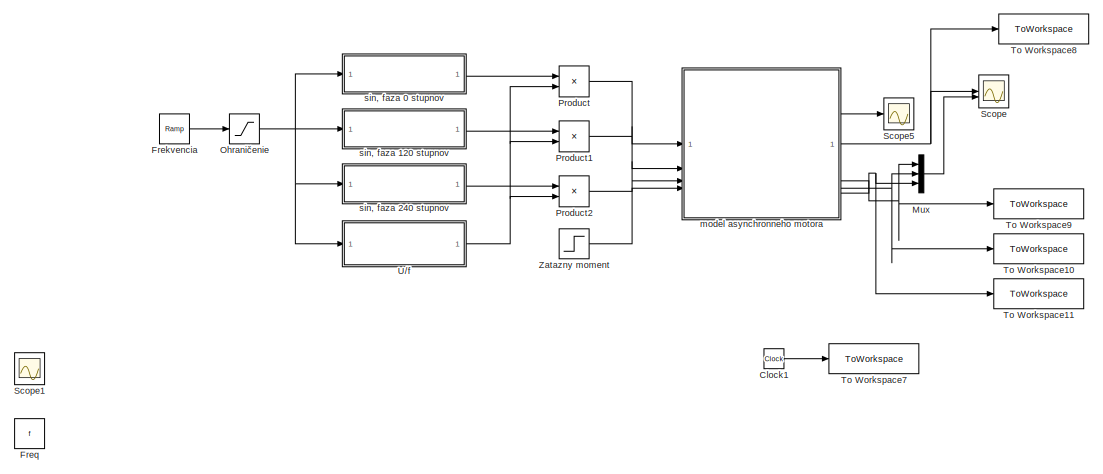
[diagram: root canvas - part 1/3, top center region]
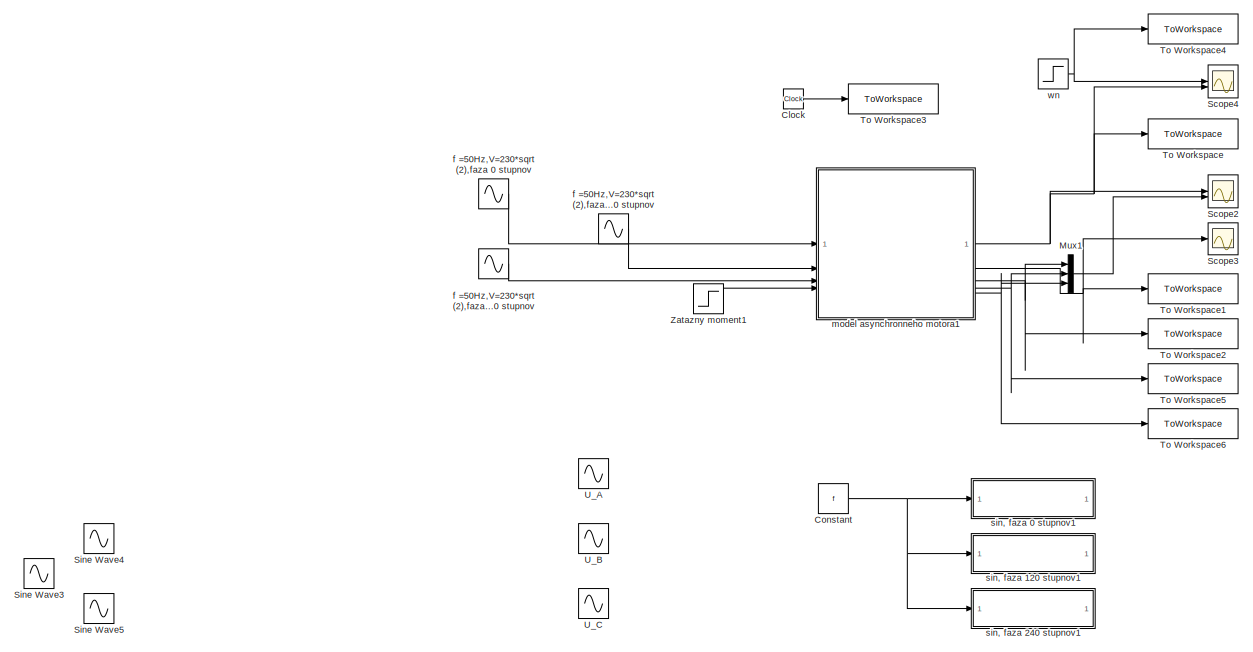
[diagram: root canvas - part 2/3, full width, bottom band]
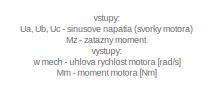
[diagram: root canvas - part 3/3, middle left region]
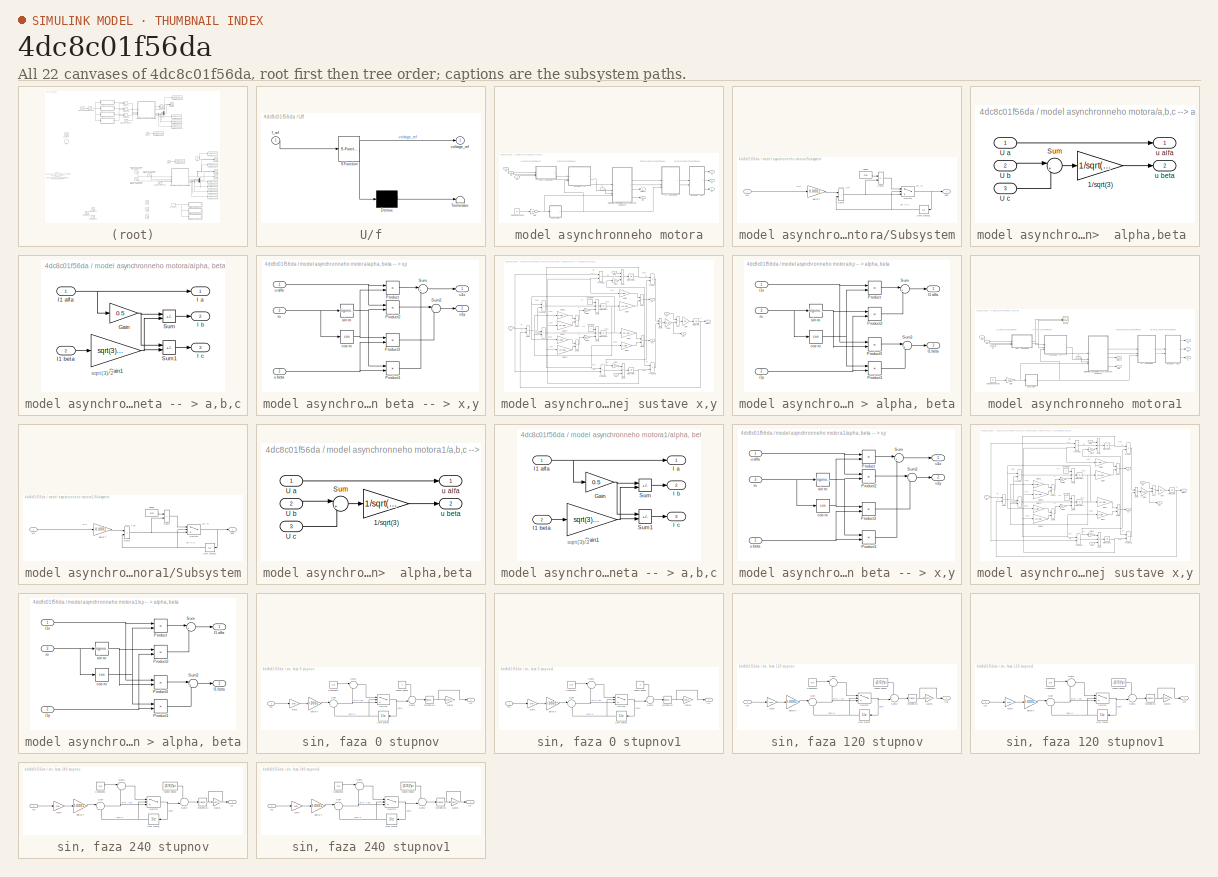
[diagram: thumbnail index - all 22 canvases of the model, root first then tree order]
MODEL slx_4dc8c01f56da
KIND model
CONFIG AbsTol = auto
CONFIG EnableMultiTasking = off
CONFIG FixedStep = 0.0001
CONFIG MaxStep = auto
CONFIG MinStep = auto
CONFIG RelTol = 1e-3
CONFIG SampleTimeConstraint = Unconstrained
CONFIG SolverName = FixedStepAuto
CONFIG StartTime = 0.0
CONFIG StopTime = 6
BLOCK [Clock] Clock
  Commented = on
BLOCK [Clock] Clock1
BLOCK [Constant] Constant
  Commented = on
  Value = f
BLOCK [Reference] Frekvencia  REF=simulink/Sources/Ramp
  SourceBlock = simulink/Sources/Ramp
  SourceType = Ramp
BLOCK [Constant] Freq
  Commented = on
  SampleTime = -1
  Value = f
BLOCK [Mux] Mux
  DisplayOption = bar
  Inputs = 3
BLOCK [Mux] Mux1
  Commented = on
  DisplayOption = bar
  Inputs = 3
BLOCK [Saturate] Ohraničenie
  LowerLimit = 0
  UpperLimit = 50
BLOCK [Product] Product
BLOCK [Product] Product1
BLOCK [Product] Product2
BLOCK [Scope] Scope
  ActiveDisplayYMaximum = 353.24722973603127
  ActiveDisplayYMinimum = -39.249692193358051
  Floating = off
  GraphicalSettings = {"Style":{"BackgroundColor":[0.12941176470588237,0.12941176470588237,0.12941176470588237],"AxesColor":[0.07058823529411765,0.07058823529411765,0.07058823529411765],"LabelsColor":[0.8509803921568627,0.8509803921568627,0.8509803921568627],"PreserveColors":false,"Visible":[true,true,true,true],"LineStyle":["-","-","-","-"],"LineWidth":[1.5,1.5,1.5,1.5],"BarWidth":[0.9,0.9,0.9,0.9],"LineColor":["auto"...<+2826ch>
  LayoutDimensionsString = [2 1]
  MultipleDisplayCache = [{"MaxYLimMag":353.24722973603127,"MaxYLimReal":353.24722973603127,"MinYLimMag":0,"MinYLimReal":-39.249692193358051,"PlotAsMagnitudePhase":false,"ShowGrid":true,"ShowLegend":true,"Title":"%<SignalLabel>","YLabel":""},{"MaxYLimMag":3.1881970952746386,"MaxYLimReal":3.1617716490214676,"MinYLimMag":0,"MinYLimReal":-3.1881970952746386,"PlotAsMagnitudePhase":false,"ShowGrid":true,"ShowLegend":true,"Titl...<+33ch>
  NumInputPorts = 2
  ScopeFrameLocation = window
  ShowLegend = on
  WasSavedAsWebScope = on
  WindowPosition = [457.000000,353.000000,1536.000000,749.000000,]
BLOCK [Scope] Scope1
  ActiveDisplayYMaximum = 474.99354
  ActiveDisplayYMinimum = -474.99354
  Commented = on
  DataLoggingVariableName = ScopeData1
  Floating = off
  GraphicalSettings = {"GraphicalSettings":{"LegacySettings":true,"Style":{"AxesScalingProperties":{"ScaleAxesLimitsAtStop":false},"Style":{"AxesColor":"[0 0 0]","ChannelNames":[""],"ColorOrder":"[1 0.909803921568627 0.392156862745098;0.149019607843137 0.549019607843137 0.866666666666667;0.96078431372549 0.466666666666667 0.16078431372549;0.286274509803922 0.858823529411765 0.250980392156863;0.752941176470588 0.3607843...<+545ch>
  MultipleDisplayCache = [{"MaxYLimMag":474.99354,"MaxYLimReal":474.99354,"MinYLimMag":0,"MinYLimReal":-474.99354,"PlotAsMagnitudePhase":false,"ShowGrid":true,"ShowLegend":false,"Title":"%<SignalLabel>","YLabel":""}]
  NumInputPorts = 1
  WasSavedAsWebScope = on
  WindowPosition = [405 330 1211 420]
BLOCK [Scope] Scope2
  ActiveDisplayYMaximum = 384.76889700905195
  ActiveDisplayYMinimum = -42.752099667675139
  Commented = on
  DataLoggingVariableName = ScopeData2
  Floating = off
  GraphicalSettings = {"Style":{"BackgroundColor":[0.12941176470588237,0.12941176470588237,0.12941176470588237],"AxesColor":[0.07058823529411765,0.07058823529411765,0.07058823529411765],"LabelsColor":[0.8509803921568627,0.8509803921568627,0.8509803921568627],"PreserveColors":false,"Visible":[true,true,true,true],"LineStyle":["-","-","-","-"],"LineWidth":[1.5,1.5,1.5,1.5],"BarWidth":[0.9,0.9,0.9,0.9],"LineColor":["auto"...<+2830ch>
  LayoutDimensionsString = [2 1]
  MultipleDisplayCache = [{"MaxYLimMag":384.76889700905195,"MaxYLimReal":384.76889700905195,"MinYLimMag":0,"MinYLimReal":-42.752099667675139,"PlotAsMagnitudePhase":false,"ShowGrid":true,"ShowLegend":true,"Title":"%<SignalLabel>","YLabel":""},{"MaxYLimMag":28.309536092335179,"MaxYLimReal":28.309536092335179,"MinYLimMag":0,"MinYLimReal":-26.536093514890119,"PlotAsMagnitudePhase":false,"ShowGrid":true,"ShowLegend":true,"Titl...<+33ch>
  NumInputPorts = 2
  ScopeFrameLocation = window
  ShowLegend = on
  WasSavedAsWebScope = on
  WindowPosition = [189.000000,113.000000,1536.000000,749.000000,]
BLOCK [Scope] Scope3
  ActiveDisplayYMaximum = 9.1078949851070767
  ActiveDisplayYMinimum = -5.36519948546464
  Commented = on
  DataLoggingVariableName = ScopeData3
  Floating = off
  GraphicalSettings = {"Style":{"BackgroundColor":[0.12941176470588237,0.12941176470588237,0.12941176470588237],"AxesColor":[0.07058823529411765,0.07058823529411765,0.07058823529411765],"LabelsColor":[0.8509803921568627,0.8509803921568627,0.8509803921568627],"PreserveColors":false,"Visible":[true],"LineStyle":["-"],"LineWidth":[1.5],"BarWidth":[0.9],"LineColor":["auto"],"LineFaceAlpha":[1],"LineEdgeAlpha":[1],"Marker":...<+2034ch>
  MultipleDisplayCache = [{"MaxYLimMag":9.1078949851070767,"MaxYLimReal":9.1078949851070767,"MinYLimMag":0,"MinYLimReal":-5.36519948546464,"PlotAsMagnitudePhase":false,"ShowGrid":true,"ShowLegend":false,"Title":"%<SignalLabel>","YLabel":""}]
  NumInputPorts = 1
  ScopeFrameLocation = window
  WasSavedAsWebScope = on
  WindowPosition = [1000.000000,510.000000,560.000000,420.000000,]
BLOCK [Scope] Scope4
  ActiveDisplayYMaximum = 1
  ActiveDisplayYMinimum = -1
  Commented = on
  DataLoggingVariableName = ScopeData4
  Floating = off
  GraphicalSettings = {"Style":{"BackgroundColor":[0.12941176470588237,0.12941176470588237,0.12941176470588237],"AxesColor":[0.07058823529411765,0.07058823529411765,0.07058823529411765],"LabelsColor":[0.8509803921568627,0.8509803921568627,0.8509803921568627],"PreserveColors":false,"Visible":[true,true],"LineStyle":["-","-"],"LineWidth":[1.5,1.5],"BarWidth":[0.9,0.9],"LineColor":["auto","auto"],"LineFaceAlpha":[1,1],"Li...<+2147ch>
  MultipleDisplayCache = [{"MaxYLimMag":1,"MaxYLimReal":1,"MinYLimMag":0,"MinYLimReal":-1,"PlotAsMagnitudePhase":false,"ShowGrid":true,"ShowLegend":true,"Title":"%<SignalLabel>","YLabel":""}]
  NumInputPorts = 2
  ScopeFrameLocation = window
  ShowLegend = on
  WasSavedAsWebScope = on
  WindowPosition = [3336.000000,339.000000,1105.000000,592.000000,]
BLOCK [Scope] Scope5
  ActiveDisplayYMaximum = 6.8461974059392778
  ActiveDisplayYMinimum = -0.94302291476539146
  DataLoggingVariableName = ScopeData6
  Floating = off
  GraphicalSettings = {"Style":{"BackgroundColor":[0.12941176470588237,0.12941176470588237,0.12941176470588237],"AxesColor":[0.07058823529411765,0.07058823529411765,0.07058823529411765],"LabelsColor":[0.8509803921568627,0.8509803921568627,0.8509803921568627],"PreserveColors":false,"Visible":[true],"LineStyle":["-"],"LineWidth":[1.5],"BarWidth":[0.9],"LineColor":["auto"],"LineFaceAlpha":[1],"LineEdgeAlpha":[1],"Marker":...<+1944ch>
  MultipleDisplayCache = [{"MaxYLimMag":6.8461974059392778,"MaxYLimReal":6.8461974059392778,"MinYLimMag":0,"MinYLimReal":-0.94302291476539146,"PlotAsMagnitudePhase":false,"ShowGrid":true,"ShowLegend":false,"Title":"%<SignalLabel>","YLabel":""}]
  NumInputPorts = 1
  ScopeFrameLocation = window
  WasSavedAsWebScope = on
  WindowPosition = [1000.000000,510.000000,560.000000,420.000000,]
BLOCK [Sin] Sine Wave3
  Amplitude = U
  Commented = on
  Frequency = 2*pi*50
  SampleTime = 0
BLOCK [Sin] Sine Wave4
  Amplitude = U
  Commented = on
  Frequency = 2*pi*50
  Phase = (2*pi)/3
  SampleTime = 0
BLOCK [Sin] Sine Wave5
  Amplitude = U
  Commented = on
  Frequency = 2*pi*50
  Phase = -(2*pi)/3
  SampleTime = 0
BLOCK [ToWorkspace] To Workspace
  Commented = on
  FixptAsFi = on
  MaxDataPoints = inf
  SampleTime = -1
  VariableName = omega
BLOCK [ToWorkspace] To Workspace1
  Commented = on
  FixptAsFi = on
  MaxDataPoints = inf
  SampleTime = -1
  VariableName = moment
BLOCK [ToWorkspace] To Workspace10
  FixptAsFi = on
  MaxDataPoints = inf
  SampleTime = -1
  VariableName = ib_scalar
BLOCK [ToWorkspace] To Workspace11
  FixptAsFi = on
  MaxDataPoints = inf
  SampleTime = -1
  VariableName = ic_scalar
BLOCK [ToWorkspace] To Workspace2
  Commented = on
  FixptAsFi = on
  MaxDataPoints = inf
  SampleTime = -1
  VariableName = ia
BLOCK [ToWorkspace] To Workspace3
  Commented = on
  FixptAsFi = on
  MaxDataPoints = inf
  SampleTime = -1
  Save2DSignal = 2-D array (concatenate along first dimension)
  VariableName = Time
BLOCK [ToWorkspace] To Workspace4
  Commented = on
  FixptAsFi = on
  MaxDataPoints = inf
  SampleTime = -1
  Save2DSignal = 2-D array (concatenate along first dimension)
  VariableName = wn_s
BLOCK [ToWorkspace] To Workspace5
  Commented = on
  FixptAsFi = on
  MaxDataPoints = inf
  SampleTime = -1
  VariableName = ib
BLOCK [ToWorkspace] To Workspace6
  Commented = on
  FixptAsFi = on
  MaxDataPoints = inf
  SampleTime = -1
  VariableName = ic
BLOCK [ToWorkspace] To Workspace7
  FixptAsFi = on
  MaxDataPoints = inf
  SampleTime = -1
  Save2DSignal = 2-D array (concatenate along first dimension)
  VariableName = Time_scalar
BLOCK [ToWorkspace] To Workspace8
  FixptAsFi = on
  MaxDataPoints = inf
  SampleTime = -1
  VariableName = omega_scalar
BLOCK [ToWorkspace] To Workspace9
  FixptAsFi = on
  MaxDataPoints = inf
  SampleTime = -1
  VariableName = ia_scalar
BLOCK [SubSystem] U//f
  ErrorFcn = Stateflow.Translate.translate
  PermitHierarchicalResolution = ExplicitOnly
  SFBlockType = MATLAB Function
  TreatAsAtomicUnit = on
BLOCK [Demux] U//f/ Demux 
  Outputs = 1
BLOCK [S-Function] U//f/ SFunction 
  EnableBusSupport = off
  FunctionName = sf_sfun
  PortCounts = [1 2]
  SFcnIsStateOwnerBlock = off
  SFunctionDeploymentMode = off
  Tag = Stateflow S-Function 2
BLOCK [Terminator] U//f/ Terminator 
BLOCK [Inport] U//f/f_ref
BLOCK [Outport] U//f/voltage_ref
BLOCK [Sin] U_A
  Amplitude = U
  Commented = on
  Frequency = 2*pi*f
  SampleTime = 0
BLOCK [Sin] U_B
  Amplitude = U
  Commented = on
  Frequency = 2*pi*f
  Phase = (2*pi)/3
  SampleTime = 0
BLOCK [Sin] U_C
  Amplitude = U
  Commented = on
  Frequency = 2*pi*f
  Phase = -(2*pi)/3
  SampleTime = 0
BLOCK [Step] Zatazny moment
  After = M
  SampleTime = 0
  Time = 4
BLOCK [Step] Zatazny moment1
  After = M
  Commented = on
  SampleTime = 0
BLOCK [Sin] f =50Hz,V=230*sqrt(2),faza 0 stupnov
  Amplitude = 230*sqrt(2)
  Commented = on
  Frequency = 2*pi*f
  SampleTime = 0
BLOCK [Sin] f =50Hz,V=230*sqrt(2),faza 120 stupnov
  Amplitude = 230*sqrt(2)
  Commented = on
  Frequency = 2*pi*f
  Phase = -2*pi/3
  SampleTime = 0
BLOCK [Sin] f =50Hz,V=230*sqrt(2),faza 240 stupnov
  Amplitude = 230*sqrt(2)
  Commented = on
  Frequency = 2*pi*f
  Phase = -4*pi/3
  SampleTime = 0
BLOCK [SubSystem] model asynchronneho motora
BLOCK [Gain] model asynchronneho motora/Gain
  Gain = 2*pi
BLOCK [Outport] model asynchronneho motora/I a
  Port = 3
BLOCK [Outport] model asynchronneho motora/I b
  Port = 4
BLOCK [Outport] model asynchronneho motora/I c
  Port = 5
BLOCK [Outport] model asynchronneho motora/Mm
  Port = 2
BLOCK [SubSystem] model asynchronneho motora/Subsystem
BLOCK [Sum] model asynchronneho motora/Subsystem/Sum1
  AccumDataTypeStr = Inherit: Same as first input
  IconShape = rectangular
  Inputs = -+
BLOCK [Sum] model asynchronneho motora/Subsystem/Sum2
  AccumDataTypeStr = Inherit: Same as first input
  IconShape = rectangular
BLOCK [Switch] model asynchronneho motora/Subsystem/Switch
  Criteria = u2 > Threshold
  InputSameDT = off
  OutDataTypeStr = single
  SaturateOnIntegerOverflow = off
  Threshold = 2*pi
BLOCK [UnitDelay] model asynchronneho motora/Subsystem/Unit Delay1
  HasFrameUpgradeWarning = on
  SampleTime = -1
BLOCK [Gain] model asynchronneho motora/Subsystem/delta T
  Gain = 0.0001
  OutDataTypeStr = Inherit: Same as input
BLOCK [Constant] model asynchronneho motora/Subsystem/faza2
  OutDataTypeStr = single
  Value = 2*pi
BLOCK [Outport] model asynchronneho motora/Subsystem/uhol
BLOCK [Inport] model asynchronneho motora/Subsystem/wk
BLOCK [Inport] model asynchronneho motora/TL
  Port = 4
BLOCK [Inport] model asynchronneho motora/Ua
BLOCK [Inport] model asynchronneho motora/Ub
  Port = 2
BLOCK [Inport] model asynchronneho motora/Uc
  Port = 3
BLOCK [SubSystem] model asynchronneho motora/a,b,c -->  alpha,beta 
BLOCK [Gain] model asynchronneho motora/a,b,c -->  alpha,beta /1//sqrt(3)
  Gain = 1/sqrt(3)
BLOCK [Sum] model asynchronneho motora/a,b,c -->  alpha,beta /Sum
  Inputs = |+-
BLOCK [Inport] model asynchronneho motora/a,b,c -->  alpha,beta /U a
BLOCK [Inport] model asynchronneho motora/a,b,c -->  alpha,beta /U b
  Port = 2
BLOCK [Inport] model asynchronneho motora/a,b,c -->  alpha,beta /U c
  Port = 3
BLOCK [Outport] model asynchronneho motora/a,b,c -->  alpha,beta /u alfa
BLOCK [Outport] model asynchronneho motora/a,b,c -->  alpha,beta /u beta
  Port = 2
BLOCK [SubSystem] model asynchronneho motora/alpha, beta -- > a,b,c
BLOCK [Gain] model asynchronneho motora/alpha, beta -- > a,b,c/Gain
  Gain = 0.5
BLOCK [Gain] model asynchronneho motora/alpha, beta -- > a,b,c/Gain1
  Gain = sqrt(3)/2
BLOCK [Outport] model asynchronneho motora/alpha, beta -- > a,b,c/I a
BLOCK [Outport] model asynchronneho motora/alpha, beta -- > a,b,c/I b
  Port = 2
BLOCK [Outport] model asynchronneho motora/alpha, beta -- > a,b,c/I c
  Port = 3
BLOCK [Inport] model asynchronneho motora/alpha, beta -- > a,b,c/I1 alfa
BLOCK [Inport] model asynchronneho motora/alpha, beta -- > a,b,c/I1 beta
  Port = 2
BLOCK [Sum] model asynchronneho motora/alpha, beta -- > a,b,c/Sum
  IconShape = rectangular
  Inputs = -+
BLOCK [Sum] model asynchronneho motora/alpha, beta -- > a,b,c/Sum1
  IconShape = rectangular
  Inputs = --
BLOCK [SubSystem] model asynchronneho motora/apha, beta -- > x,y
BLOCK [Product] model asynchronneho motora/apha, beta -- > x,y/Product
  RndMeth = Zero
BLOCK [Product] model asynchronneho motora/apha, beta -- > x,y/Product1
  RndMeth = Zero
BLOCK [Product] model asynchronneho motora/apha, beta -- > x,y/Product2
  RndMeth = Zero
BLOCK [Product] model asynchronneho motora/apha, beta -- > x,y/Product3
  RndMeth = Zero
BLOCK [Sum] model asynchronneho motora/apha, beta -- > x,y/Sum
  Inputs = |++
BLOCK [Sum] model asynchronneho motora/apha, beta -- > x,y/Sum2
  Inputs = |-+
BLOCK [Trigonometry] model asynchronneho motora/apha, beta -- > x,y/cos ro
  Operator = cos
BLOCK [Inport] model asynchronneho motora/apha, beta -- > x,y/ro
  Port = 3
BLOCK [Trigonometry] model asynchronneho motora/apha, beta -- > x,y/sin ro
BLOCK [Inport] model asynchronneho motora/apha, beta -- > x,y/u alfa
BLOCK [Inport] model asynchronneho motora/apha, beta -- > x,y/u beta
  Port = 2
BLOCK [Outport] model asynchronneho motora/apha, beta -- > x,y/u1x
BLOCK [Outport] model asynchronneho motora/apha, beta -- > x,y/u1y
  Port = 2
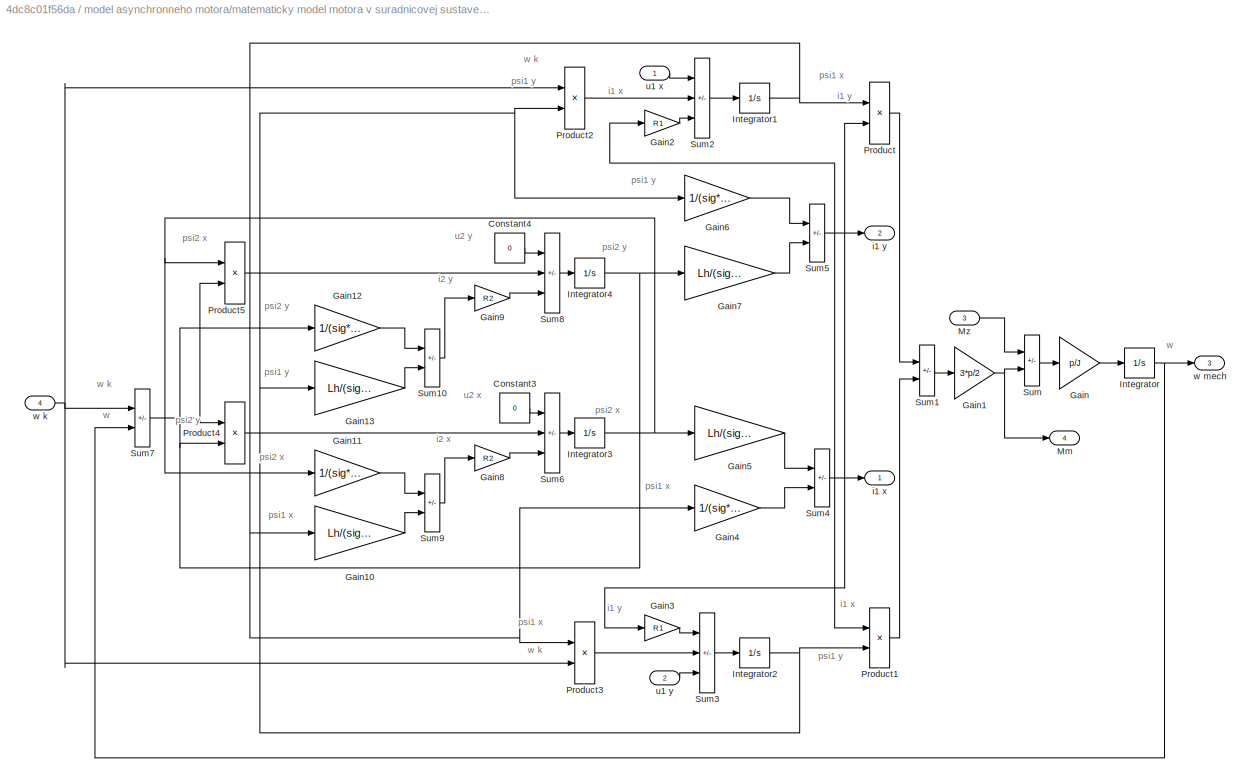
BLOCK [SubSystem] model asynchronneho motora/matematicky model motora v suradnicovej sustave x,y
BLOCK [Constant] model asynchronneho motora/matematicky model motora v suradnicovej sustave x,y/Constant3
  Value = 0
BLOCK [Constant] model asynchronneho motora/matematicky model motora v suradnicovej sustave x,y/Constant4
  Value = 0
BLOCK [Gain] model asynchronneho motora/matematicky model motora v suradnicovej sustave x,y/Gain
  Gain = p/J
BLOCK [Gain] model asynchronneho motora/matematicky model motora v suradnicovej sustave x,y/Gain1
  Gain = 3*p/2
BLOCK [Gain] model asynchronneho motora/matematicky model motora v suradnicovej sustave x,y/Gain10
  Gain = Lh/(sig*L1*L2)
BLOCK [Gain] model asynchronneho motora/matematicky model motora v suradnicovej sustave x,y/Gain11
  Gain = 1/(sig*L2)
BLOCK [Gain] model asynchronneho motora/matematicky model motora v suradnicovej sustave x,y/Gain12
  Gain = 1/(sig*L2)
BLOCK [Gain] model asynchronneho motora/matematicky model motora v suradnicovej sustave x,y/Gain13
  Gain = Lh/(sig*L1*L2)
BLOCK [Gain] model asynchronneho motora/matematicky model motora v suradnicovej sustave x,y/Gain2
  Gain = R1
BLOCK [Gain] model asynchronneho motora/matematicky model motora v suradnicovej sustave x,y/Gain3
  Gain = R1
BLOCK [Gain] model asynchronneho motora/matematicky model motora v suradnicovej sustave x,y/Gain4
  Gain = 1/(sig*L1)
BLOCK [Gain] model asynchronneho motora/matematicky model motora v suradnicovej sustave x,y/Gain5
  Gain = Lh/(sig*L1*L2)
BLOCK [Gain] model asynchronneho motora/matematicky model motora v suradnicovej sustave x,y/Gain6
  Gain = 1/(sig*L1)
BLOCK [Gain] model asynchronneho motora/matematicky model motora v suradnicovej sustave x,y/Gain7
  Gain = Lh/(sig*L1*L2)
BLOCK [Gain] model asynchronneho motora/matematicky model motora v suradnicovej sustave x,y/Gain8
  Gain = R2
BLOCK [Gain] model asynchronneho motora/matematicky model motora v suradnicovej sustave x,y/Gain9
  Gain = R2
BLOCK [Integrator] model asynchronneho motora/matematicky model motora v suradnicovej sustave x,y/Integrator
BLOCK [Integrator] model asynchronneho motora/matematicky model motora v suradnicovej sustave x,y/Integrator1
BLOCK [Integrator] model asynchronneho motora/matematicky model motora v suradnicovej sustave x,y/Integrator2
BLOCK [Integrator] model asynchronneho motora/matematicky model motora v suradnicovej sustave x,y/Integrator3
BLOCK [Integrator] model asynchronneho motora/matematicky model motora v suradnicovej sustave x,y/Integrator4
BLOCK [Outport] model asynchronneho motora/matematicky model motora v suradnicovej sustave x,y/Mm
  Port = 4
BLOCK [Inport] model asynchronneho motora/matematicky model motora v suradnicovej sustave x,y/Mz
  Port = 3
BLOCK [Product] model asynchronneho motora/matematicky model motora v suradnicovej sustave x,y/Product
  RndMeth = Zero
BLOCK [Product] model asynchronneho motora/matematicky model motora v suradnicovej sustave x,y/Product1
  RndMeth = Zero
BLOCK [Product] model asynchronneho motora/matematicky model motora v suradnicovej sustave x,y/Product2
  RndMeth = Zero
BLOCK [Product] model asynchronneho motora/matematicky model motora v suradnicovej sustave x,y/Product3
  RndMeth = Zero
BLOCK [Product] model asynchronneho motora/matematicky model motora v suradnicovej sustave x,y/Product4
  RndMeth = Zero
BLOCK [Product] model asynchronneho motora/matematicky model motora v suradnicovej sustave x,y/Product5
  RndMeth = Zero
BLOCK [Sum] model asynchronneho motora/matematicky model motora v suradnicovej sustave x,y/Sum
  IconShape = rectangular
  Inputs = -+
BLOCK [Sum] model asynchronneho motora/matematicky model motora v suradnicovej sustave x,y/Sum1
  IconShape = rectangular
  Inputs = +-
BLOCK [Sum] model asynchronneho motora/matematicky model motora v suradnicovej sustave x,y/Sum10
  IconShape = rectangular
  Inputs = +-
BLOCK [Sum] model asynchronneho motora/matematicky model motora v suradnicovej sustave x,y/Sum2
  IconShape = rectangular
  Inputs = ++-
BLOCK [Sum] model asynchronneho motora/matematicky model motora v suradnicovej sustave x,y/Sum3
  IconShape = rectangular
  Inputs = --+
BLOCK [Sum] model asynchronneho motora/matematicky model motora v suradnicovej sustave x,y/Sum4
  IconShape = rectangular
  Inputs = -+
BLOCK [Sum] model asynchronneho motora/matematicky model motora v suradnicovej sustave x,y/Sum5
  IconShape = rectangular
  Inputs = +-
BLOCK [Sum] model asynchronneho motora/matematicky model motora v suradnicovej sustave x,y/Sum6
  IconShape = rectangular
  Inputs = ++-
BLOCK [Sum] model asynchronneho motora/matematicky model motora v suradnicovej sustave x,y/Sum7
  IconShape = rectangular
  Inputs = +-
BLOCK [Sum] model asynchronneho motora/matematicky model motora v suradnicovej sustave x,y/Sum8
  IconShape = rectangular
  Inputs = +--
BLOCK [Sum] model asynchronneho motora/matematicky model motora v suradnicovej sustave x,y/Sum9
  IconShape = rectangular
  Inputs = +-
BLOCK [Outport] model asynchronneho motora/matematicky model motora v suradnicovej sustave x,y/i1 x
BLOCK [Outport] model asynchronneho motora/matematicky model motora v suradnicovej sustave x,y/i1 y
  Port = 2
BLOCK [Inport] model asynchronneho motora/matematicky model motora v suradnicovej sustave x,y/u1 x
BLOCK [Inport] model asynchronneho motora/matematicky model motora v suradnicovej sustave x,y/u1 y
  Port = 2
BLOCK [Inport] model asynchronneho motora/matematicky model motora v suradnicovej sustave x,y/w k
  Port = 4
BLOCK [Outport] model asynchronneho motora/matematicky model motora v suradnicovej sustave x,y/w mech
  Port = 3
BLOCK [Outport] model asynchronneho motora/w mech
BLOCK [SubSystem] model asynchronneho motora/x,y -- > alpha, beta
BLOCK [Outport] model asynchronneho motora/x,y -- > alpha, beta/I1 alfa
BLOCK [Outport] model asynchronneho motora/x,y -- > alpha, beta/I1 beta
  Port = 2
BLOCK [Product] model asynchronneho motora/x,y -- > alpha, beta/Product
  RndMeth = Zero
BLOCK [Product] model asynchronneho motora/x,y -- > alpha, beta/Product1
  RndMeth = Zero
BLOCK [Product] model asynchronneho motora/x,y -- > alpha, beta/Product2
  RndMeth = Zero
BLOCK [Product] model asynchronneho motora/x,y -- > alpha, beta/Product3
  RndMeth = Zero
BLOCK [Sum] model asynchronneho motora/x,y -- > alpha, beta/Sum
  Inputs = |+-
BLOCK [Sum] model asynchronneho motora/x,y -- > alpha, beta/Sum2
  Inputs = |++
BLOCK [Trigonometry] model asynchronneho motora/x,y -- > alpha, beta/cos ro
  Operator = cos
BLOCK [Inport] model asynchronneho motora/x,y -- > alpha, beta/i1x
BLOCK [Inport] model asynchronneho motora/x,y -- > alpha, beta/i1y
  Port = 2
BLOCK [Inport] model asynchronneho motora/x,y -- > alpha, beta/ro 
  Port = 3
BLOCK [Trigonometry] model asynchronneho motora/x,y -- > alpha, beta/sin ro
BLOCK [Constant] model asynchronneho motora/zelana frekvencia
  Value = 50
BLOCK [SubSystem] model asynchronneho motora1
  Commented = on
BLOCK [Gain] model asynchronneho motora1/Gain
  Gain = 2*pi
BLOCK [Outport] model asynchronneho motora1/I a
  Port = 3
BLOCK [Outport] model asynchronneho motora1/I b
  Port = 4
BLOCK [Outport] model asynchronneho motora1/I c
  Port = 5
BLOCK [Outport] model asynchronneho motora1/Mm
  Port = 2
BLOCK [Scope] model asynchronneho motora1/Scope
  ActiveDisplayYMaximum = 371.70919052872546
  ActiveDisplayYMinimum = -412.2715694519627
  DataLoggingVariableName = ScopeData5
  Floating = off
  GraphicalSettings = {"AxesScalingProperties":{"AlignXAxis":"Center","AlignYAxis":"Center","AutoScaleXAxisLimits":false,"AxesScaling":"Manual","AxesScalingNumUpdates":10,"ExpandOnly":true,"ScaleAxesLimitsAtStop":false,"XAxisDataRange":100,"YAxisDataRange":80},"DisplayProperties":{"ColorOrder":["auto","auto","auto","auto","auto","auto","auto","auto","auto","auto","auto","auto","auto","auto","auto","auto","auto","auto",...<+2097ch>
  MultipleDisplayCache = [{"MaxYLimMag":406.58639918226481,"MaxYLimReal":371.70919052872546,"MinYLimMag":0,"MinYLimReal":-412.2715694519627,"PlotAsMagnitudePhase":false,"ShowGrid":true,"ShowLegend":false,"Title":"%<SignalLabel>","YLabel":""}]
  NumInputPorts = 2
  ScopeFrameLocation = window
  WasSavedAsWebScope = on
  WindowPosition = [1000.000000,510.000000,560.000000,420.000000,]
BLOCK [SubSystem] model asynchronneho motora1/Subsystem
BLOCK [Sum] model asynchronneho motora1/Subsystem/Sum1
  AccumDataTypeStr = Inherit: Same as first input
  IconShape = rectangular
  Inputs = -+
BLOCK [Sum] model asynchronneho motora1/Subsystem/Sum2
  AccumDataTypeStr = Inherit: Same as first input
  IconShape = rectangular
BLOCK [Switch] model asynchronneho motora1/Subsystem/Switch
  Criteria = u2 > Threshold
  InputSameDT = off
  OutDataTypeStr = single
  SaturateOnIntegerOverflow = off
  Threshold = 2*pi
BLOCK [UnitDelay] model asynchronneho motora1/Subsystem/Unit Delay1
  HasFrameUpgradeWarning = on
  SampleTime = -1
BLOCK [Gain] model asynchronneho motora1/Subsystem/delta T
  Gain = 0.0001
  OutDataTypeStr = Inherit: Same as input
BLOCK [Constant] model asynchronneho motora1/Subsystem/faza2
  OutDataTypeStr = single
  Value = 2*pi
BLOCK [Outport] model asynchronneho motora1/Subsystem/uhol
BLOCK [Inport] model asynchronneho motora1/Subsystem/wk
BLOCK [Inport] model asynchronneho motora1/TL
  Port = 4
BLOCK [Inport] model asynchronneho motora1/Ua
BLOCK [Inport] model asynchronneho motora1/Ub
  Port = 2
BLOCK [Inport] model asynchronneho motora1/Uc
  Port = 3
BLOCK [SubSystem] model asynchronneho motora1/a,b,c -->  alpha,beta 
BLOCK [Gain] model asynchronneho motora1/a,b,c -->  alpha,beta /1//sqrt(3)
  Gain = 1/sqrt(3)
BLOCK [Sum] model asynchronneho motora1/a,b,c -->  alpha,beta /Sum
  Inputs = |+-
BLOCK [Inport] model asynchronneho motora1/a,b,c -->  alpha,beta /U a
BLOCK [Inport] model asynchronneho motora1/a,b,c -->  alpha,beta /U b
  Port = 2
BLOCK [Inport] model asynchronneho motora1/a,b,c -->  alpha,beta /U c
  Port = 3
BLOCK [Outport] model asynchronneho motora1/a,b,c -->  alpha,beta /u alfa
BLOCK [Outport] model asynchronneho motora1/a,b,c -->  alpha,beta /u beta
  Port = 2
BLOCK [SubSystem] model asynchronneho motora1/alpha, beta -- > a,b,c
BLOCK [Gain] model asynchronneho motora1/alpha, beta -- > a,b,c/Gain
  Gain = 0.5
BLOCK [Gain] model asynchronneho motora1/alpha, beta -- > a,b,c/Gain1
  Gain = sqrt(3)/2
BLOCK [Outport] model asynchronneho motora1/alpha, beta -- > a,b,c/I a
BLOCK [Outport] model asynchronneho motora1/alpha, beta -- > a,b,c/I b
  Port = 2
BLOCK [Outport] model asynchronneho motora1/alpha, beta -- > a,b,c/I c
  Port = 3
BLOCK [Inport] model asynchronneho motora1/alpha, beta -- > a,b,c/I1 alfa
BLOCK [Inport] model asynchronneho motora1/alpha, beta -- > a,b,c/I1 beta
  Port = 2
BLOCK [Sum] model asynchronneho motora1/alpha, beta -- > a,b,c/Sum
  IconShape = rectangular
  Inputs = -+
BLOCK [Sum] model asynchronneho motora1/alpha, beta -- > a,b,c/Sum1
  IconShape = rectangular
  Inputs = --
BLOCK [SubSystem] model asynchronneho motora1/apha, beta -- > x,y
BLOCK [Product] model asynchronneho motora1/apha, beta -- > x,y/Product
  RndMeth = Zero
BLOCK [Product] model asynchronneho motora1/apha, beta -- > x,y/Product1
  RndMeth = Zero
BLOCK [Product] model asynchronneho motora1/apha, beta -- > x,y/Product2
  RndMeth = Zero
BLOCK [Product] model asynchronneho motora1/apha, beta -- > x,y/Product3
  RndMeth = Zero
BLOCK [Sum] model asynchronneho motora1/apha, beta -- > x,y/Sum
  Inputs = |++
BLOCK [Sum] model asynchronneho motora1/apha, beta -- > x,y/Sum2
  Inputs = |-+
BLOCK [Trigonometry] model asynchronneho motora1/apha, beta -- > x,y/cos ro
  Operator = cos
BLOCK [Inport] model asynchronneho motora1/apha, beta -- > x,y/ro
  Port = 3
BLOCK [Trigonometry] model asynchronneho motora1/apha, beta -- > x,y/sin ro
BLOCK [Inport] model asynchronneho motora1/apha, beta -- > x,y/u alfa
BLOCK [Inport] model asynchronneho motora1/apha, beta -- > x,y/u beta
  Port = 2
BLOCK [Outport] model asynchronneho motora1/apha, beta -- > x,y/u1x
BLOCK [Outport] model asynchronneho motora1/apha, beta -- > x,y/u1y
  Port = 2
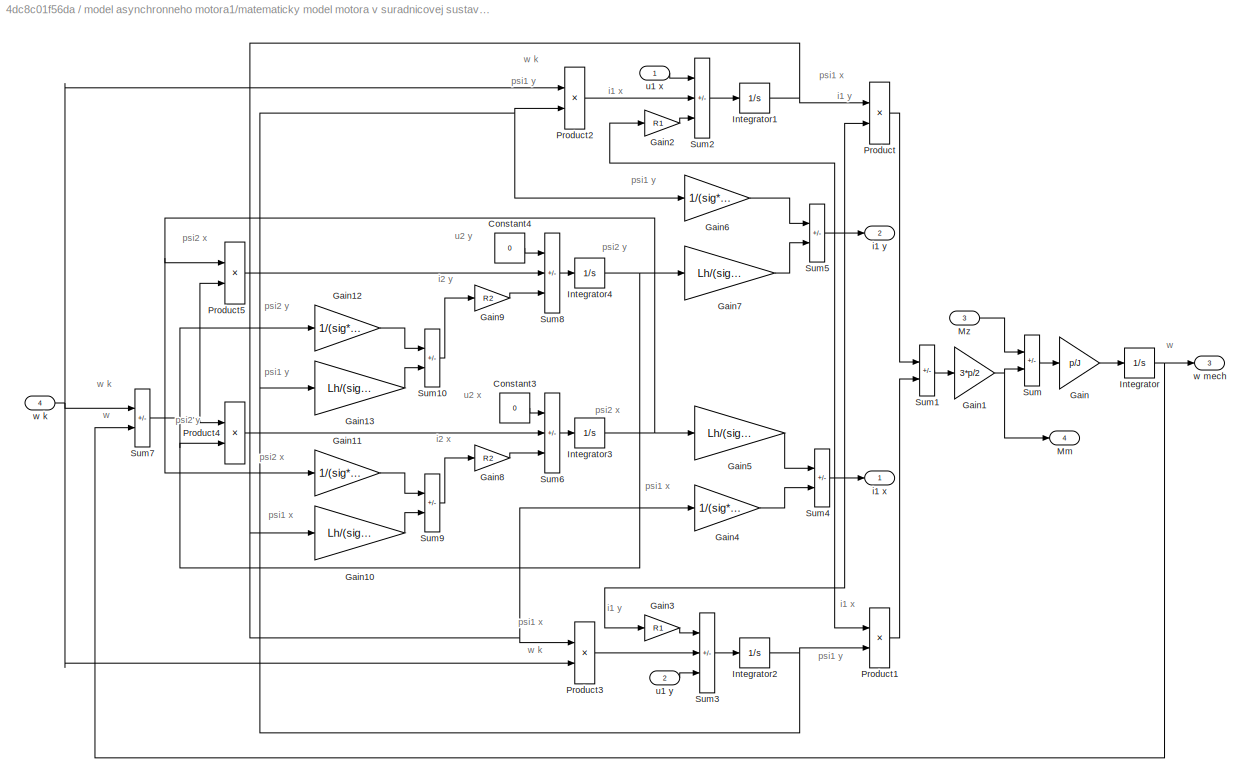
BLOCK [SubSystem] model asynchronneho motora1/matematicky model motora v suradnicovej sustave x,y
BLOCK [Constant] model asynchronneho motora1/matematicky model motora v suradnicovej sustave x,y/Constant3
  Value = 0
BLOCK [Constant] model asynchronneho motora1/matematicky model motora v suradnicovej sustave x,y/Constant4
  Value = 0
BLOCK [Gain] model asynchronneho motora1/matematicky model motora v suradnicovej sustave x,y/Gain
  Gain = p/J
BLOCK [Gain] model asynchronneho motora1/matematicky model motora v suradnicovej sustave x,y/Gain1
  Gain = 3*p/2
BLOCK [Gain] model asynchronneho motora1/matematicky model motora v suradnicovej sustave x,y/Gain10
  Gain = Lh/(sig*L1*L2)
BLOCK [Gain] model asynchronneho motora1/matematicky model motora v suradnicovej sustave x,y/Gain11
  Gain = 1/(sig*L2)
BLOCK [Gain] model asynchronneho motora1/matematicky model motora v suradnicovej sustave x,y/Gain12
  Gain = 1/(sig*L2)
BLOCK [Gain] model asynchronneho motora1/matematicky model motora v suradnicovej sustave x,y/Gain13
  Gain = Lh/(sig*L1*L2)
BLOCK [Gain] model asynchronneho motora1/matematicky model motora v suradnicovej sustave x,y/Gain2
  Gain = R1
BLOCK [Gain] model asynchronneho motora1/matematicky model motora v suradnicovej sustave x,y/Gain3
  Gain = R1
BLOCK [Gain] model asynchronneho motora1/matematicky model motora v suradnicovej sustave x,y/Gain4
  Gain = 1/(sig*L1)
BLOCK [Gain] model asynchronneho motora1/matematicky model motora v suradnicovej sustave x,y/Gain5
  Gain = Lh/(sig*L1*L2)
BLOCK [Gain] model asynchronneho motora1/matematicky model motora v suradnicovej sustave x,y/Gain6
  Gain = 1/(sig*L1)
BLOCK [Gain] model asynchronneho motora1/matematicky model motora v suradnicovej sustave x,y/Gain7
  Gain = Lh/(sig*L1*L2)
BLOCK [Gain] model asynchronneho motora1/matematicky model motora v suradnicovej sustave x,y/Gain8
  Gain = R2
BLOCK [Gain] model asynchronneho motora1/matematicky model motora v suradnicovej sustave x,y/Gain9
  Gain = R2
BLOCK [Integrator] model asynchronneho motora1/matematicky model motora v suradnicovej sustave x,y/Integrator
BLOCK [Integrator] model asynchronneho motora1/matematicky model motora v suradnicovej sustave x,y/Integrator1
BLOCK [Integrator] model asynchronneho motora1/matematicky model motora v suradnicovej sustave x,y/Integrator2
BLOCK [Integrator] model asynchronneho motora1/matematicky model motora v suradnicovej sustave x,y/Integrator3
BLOCK [Integrator] model asynchronneho motora1/matematicky model motora v suradnicovej sustave x,y/Integrator4
BLOCK [Outport] model asynchronneho motora1/matematicky model motora v suradnicovej sustave x,y/Mm
  Port = 4
BLOCK [Inport] model asynchronneho motora1/matematicky model motora v suradnicovej sustave x,y/Mz
  Port = 3
BLOCK [Product] model asynchronneho motora1/matematicky model motora v suradnicovej sustave x,y/Product
  RndMeth = Zero
BLOCK [Product] model asynchronneho motora1/matematicky model motora v suradnicovej sustave x,y/Product1
  RndMeth = Zero
BLOCK [Product] model asynchronneho motora1/matematicky model motora v suradnicovej sustave x,y/Product2
  RndMeth = Zero
BLOCK [Product] model asynchronneho motora1/matematicky model motora v suradnicovej sustave x,y/Product3
  RndMeth = Zero
BLOCK [Product] model asynchronneho motora1/matematicky model motora v suradnicovej sustave x,y/Product4
  RndMeth = Zero
BLOCK [Product] model asynchronneho motora1/matematicky model motora v suradnicovej sustave x,y/Product5
  RndMeth = Zero
BLOCK [Sum] model asynchronneho motora1/matematicky model motora v suradnicovej sustave x,y/Sum
  IconShape = rectangular
  Inputs = -+
BLOCK [Sum] model asynchronneho motora1/matematicky model motora v suradnicovej sustave x,y/Sum1
  IconShape = rectangular
  Inputs = +-
BLOCK [Sum] model asynchronneho motora1/matematicky model motora v suradnicovej sustave x,y/Sum10
  IconShape = rectangular
  Inputs = +-
BLOCK [Sum] model asynchronneho motora1/matematicky model motora v suradnicovej sustave x,y/Sum2
  IconShape = rectangular
  Inputs = ++-
BLOCK [Sum] model asynchronneho motora1/matematicky model motora v suradnicovej sustave x,y/Sum3
  IconShape = rectangular
  Inputs = --+
BLOCK [Sum] model asynchronneho motora1/matematicky model motora v suradnicovej sustave x,y/Sum4
  IconShape = rectangular
  Inputs = -+
BLOCK [Sum] model asynchronneho motora1/matematicky model motora v suradnicovej sustave x,y/Sum5
  IconShape = rectangular
  Inputs = +-
BLOCK [Sum] model asynchronneho motora1/matematicky model motora v suradnicovej sustave x,y/Sum6
  IconShape = rectangular
  Inputs = ++-
BLOCK [Sum] model asynchronneho motora1/matematicky model motora v suradnicovej sustave x,y/Sum7
  IconShape = rectangular
  Inputs = +-
BLOCK [Sum] model asynchronneho motora1/matematicky model motora v suradnicovej sustave x,y/Sum8
  IconShape = rectangular
  Inputs = +--
BLOCK [Sum] model asynchronneho motora1/matematicky model motora v suradnicovej sustave x,y/Sum9
  IconShape = rectangular
  Inputs = +-
BLOCK [Outport] model asynchronneho motora1/matematicky model motora v suradnicovej sustave x,y/i1 x
BLOCK [Outport] model asynchronneho motora1/matematicky model motora v suradnicovej sustave x,y/i1 y
  Port = 2
BLOCK [Inport] model asynchronneho motora1/matematicky model motora v suradnicovej sustave x,y/u1 x
BLOCK [Inport] model asynchronneho motora1/matematicky model motora v suradnicovej sustave x,y/u1 y
  Port = 2
BLOCK [Inport] model asynchronneho motora1/matematicky model motora v suradnicovej sustave x,y/w k
  Port = 4
BLOCK [Outport] model asynchronneho motora1/matematicky model motora v suradnicovej sustave x,y/w mech
  Port = 3
BLOCK [Outport] model asynchronneho motora1/w mech
BLOCK [SubSystem] model asynchronneho motora1/x,y -- > alpha, beta
BLOCK [Outport] model asynchronneho motora1/x,y -- > alpha, beta/I1 alfa
BLOCK [Outport] model asynchronneho motora1/x,y -- > alpha, beta/I1 beta
  Port = 2
BLOCK [Product] model asynchronneho motora1/x,y -- > alpha, beta/Product
  RndMeth = Zero
BLOCK [Product] model asynchronneho motora1/x,y -- > alpha, beta/Product1
  RndMeth = Zero
BLOCK [Product] model asynchronneho motora1/x,y -- > alpha, beta/Product2
  RndMeth = Zero
BLOCK [Product] model asynchronneho motora1/x,y -- > alpha, beta/Product3
  RndMeth = Zero
BLOCK [Sum] model asynchronneho motora1/x,y -- > alpha, beta/Sum
  Inputs = |+-
BLOCK [Sum] model asynchronneho motora1/x,y -- > alpha, beta/Sum2
  Inputs = |++
BLOCK [Trigonometry] model asynchronneho motora1/x,y -- > alpha, beta/cos ro
  Operator = cos
BLOCK [Inport] model asynchronneho motora1/x,y -- > alpha, beta/i1x
BLOCK [Inport] model asynchronneho motora1/x,y -- > alpha, beta/i1y
  Port = 2
BLOCK [Inport] model asynchronneho motora1/x,y -- > alpha, beta/ro 
  Port = 3
BLOCK [Trigonometry] model asynchronneho motora1/x,y -- > alpha, beta/sin ro
BLOCK [Constant] model asynchronneho motora1/zelana frekvencia
  Value = 50
BLOCK [SubSystem] sin, faza 0 stupnov
BLOCK [Constant] sin, faza 0 stupnov/Constant2
  SampleTime = -1
  Value = 2*pi
BLOCK [Gain] sin, faza 0 stupnov/Gain
  Gain = 2*pi
BLOCK [Gain] sin, faza 0 stupnov/Gain1
  Gain = U/sqrt(3)*sqrt(2)
BLOCK [Inport] sin, faza 0 stupnov/In1
BLOCK [Sum] sin, faza 0 stupnov/Sum
  Inputs = |++
BLOCK [Sum] sin, faza 0 stupnov/Sum1
  Inputs = |-+
BLOCK [Sum] sin, faza 0 stupnov/Sum2
  Inputs = ++|
BLOCK [Switch] sin, faza 0 stupnov/Switch
  Criteria = u2 > Threshold
  InputSameDT = off
  SaturateOnIntegerOverflow = off
  Threshold = 2*pi
BLOCK [Outport] sin, faza 0 stupnov/Ua
BLOCK [UnitDelay] sin, faza 0 stupnov/Unit Delay
  HasFrameUpgradeWarning = on
  SampleTime = -1
BLOCK [Gain] sin, faza 0 stupnov/delta T
  Gain = 0.0001
BLOCK [Constant] sin, faza 0 stupnov/fazovy posun
  SampleTime = -1
  Value = 0
BLOCK [Trigonometry] sin, faza 0 stupnov/sin(phi(k))
BLOCK [SubSystem] sin, faza 0 stupnov1
  Commented = on
BLOCK [Constant] sin, faza 0 stupnov1/Constant2
  SampleTime = -1
  Value = 2*pi
BLOCK [Gain] sin, faza 0 stupnov1/Gain
  Gain = 2*pi
BLOCK [Gain] sin, faza 0 stupnov1/Gain1
  Gain = U/sqrt(3)*sqrt(2)
BLOCK [Inport] sin, faza 0 stupnov1/In1
BLOCK [Sum] sin, faza 0 stupnov1/Sum
  Inputs = |++
BLOCK [Sum] sin, faza 0 stupnov1/Sum1
  Inputs = |-+
BLOCK [Sum] sin, faza 0 stupnov1/Sum2
  Inputs = ++|
BLOCK [Switch] sin, faza 0 stupnov1/Switch
  Criteria = u2 > Threshold
  InputSameDT = off
  SaturateOnIntegerOverflow = off
  Threshold = 2*pi
BLOCK [Outport] sin, faza 0 stupnov1/Ua
BLOCK [UnitDelay] sin, faza 0 stupnov1/Unit Delay
  HasFrameUpgradeWarning = on
  SampleTime = -1
BLOCK [Gain] sin, faza 0 stupnov1/delta T
  Gain = 0.0001
BLOCK [Constant] sin, faza 0 stupnov1/fazovy posun
  SampleTime = -1
  Value = 0
BLOCK [Trigonometry] sin, faza 0 stupnov1/sin(phi(k))
BLOCK [SubSystem] sin, faza 120 stupnov
BLOCK [Constant] sin, faza 120 stupnov/Constant2
  SampleTime = -1
  Value = 2*pi
BLOCK [Gain] sin, faza 120 stupnov/Gain
  Gain = 2*pi
BLOCK [Gain] sin, faza 120 stupnov/Gain1
  Gain = U/sqrt(3)*sqrt(2)
BLOCK [Inport] sin, faza 120 stupnov/In1
BLOCK [Sum] sin, faza 120 stupnov/Sum
  Inputs = |++
BLOCK [Sum] sin, faza 120 stupnov/Sum1
  Inputs = |-+
BLOCK [Sum] sin, faza 120 stupnov/Sum2
  Inputs = ++|
BLOCK [Switch] sin, faza 120 stupnov/Switch
  Criteria = u2 > Threshold
  InputSameDT = off
  SaturateOnIntegerOverflow = off
  Threshold = 2*pi
BLOCK [Outport] sin, faza 120 stupnov/Ub
BLOCK [UnitDelay] sin, faza 120 stupnov/Unit Delay
  HasFrameUpgradeWarning = on
  SampleTime = -1
BLOCK [Gain] sin, faza 120 stupnov/delta T
  Gain = 0.0001
BLOCK [Constant] sin, faza 120 stupnov/fazovy posun
  SampleTime = -1
  Value = -(2/3)*pi
BLOCK [Trigonometry] sin, faza 120 stupnov/sin(phi(k))
BLOCK [SubSystem] sin, faza 120 stupnov1
  Commented = on
BLOCK [Constant] sin, faza 120 stupnov1/Constant2
  SampleTime = -1
  Value = 2*pi
BLOCK [Gain] sin, faza 120 stupnov1/Gain
  Gain = 2*pi
BLOCK [Gain] sin, faza 120 stupnov1/Gain1
  Gain = U/sqrt(3)*sqrt(2)
BLOCK [Inport] sin, faza 120 stupnov1/In1
BLOCK [Sum] sin, faza 120 stupnov1/Sum
  Inputs = |++
BLOCK [Sum] sin, faza 120 stupnov1/Sum1
  Inputs = |-+
BLOCK [Sum] sin, faza 120 stupnov1/Sum2
  Inputs = ++|
BLOCK [Switch] sin, faza 120 stupnov1/Switch
  Criteria = u2 > Threshold
  InputSameDT = off
  SaturateOnIntegerOverflow = off
  Threshold = 2*pi
BLOCK [Outport] sin, faza 120 stupnov1/Ub
BLOCK [UnitDelay] sin, faza 120 stupnov1/Unit Delay
  HasFrameUpgradeWarning = on
  SampleTime = -1
BLOCK [Gain] sin, faza 120 stupnov1/delta T
  Gain = 0.0001
BLOCK [Constant] sin, faza 120 stupnov1/fazovy posun
  SampleTime = -1
  Value = -(2/3)*pi
BLOCK [Trigonometry] sin, faza 120 stupnov1/sin(phi(k))
BLOCK [SubSystem] sin, faza 240 stupnov
BLOCK [Constant] sin, faza 240 stupnov/Constant2
  SampleTime = -1
  Value = 2*pi
BLOCK [Gain] sin, faza 240 stupnov/Gain
  Gain = 2*pi
BLOCK [Gain] sin, faza 240 stupnov/Gain1
  Gain = U/sqrt(3)*sqrt(2)
BLOCK [Inport] sin, faza 240 stupnov/In1
BLOCK [Sum] sin, faza 240 stupnov/Sum
  Inputs = |++
BLOCK [Sum] sin, faza 240 stupnov/Sum1
  Inputs = |-+
BLOCK [Sum] sin, faza 240 stupnov/Sum2
  Inputs = ++|
BLOCK [Switch] sin, faza 240 stupnov/Switch
  Criteria = u2 > Threshold
  InputSameDT = off
  SaturateOnIntegerOverflow = off
  Threshold = 2*pi
BLOCK [Outport] sin, faza 240 stupnov/Uc
BLOCK [UnitDelay] sin, faza 240 stupnov/Unit Delay
  HasFrameUpgradeWarning = on
  SampleTime = -1
BLOCK [Gain] sin, faza 240 stupnov/delta T
  Gain = 0.0001
BLOCK [Constant] sin, faza 240 stupnov/fazovy posun
  SampleTime = -1
  Value = (2/3)*pi
BLOCK [Trigonometry] sin, faza 240 stupnov/sin(phi(k))
BLOCK [SubSystem] sin, faza 240 stupnov1
  Commented = on
BLOCK [Constant] sin, faza 240 stupnov1/Constant2
  SampleTime = -1
  Value = 2*pi
BLOCK [Gain] sin, faza 240 stupnov1/Gain
  Gain = 2*pi
BLOCK [Gain] sin, faza 240 stupnov1/Gain1
  Gain = U/sqrt(3)*sqrt(2)
BLOCK [Inport] sin, faza 240 stupnov1/In1
BLOCK [Sum] sin, faza 240 stupnov1/Sum
  Inputs = |++
BLOCK [Sum] sin, faza 240 stupnov1/Sum1
  Inputs = |-+
BLOCK [Sum] sin, faza 240 stupnov1/Sum2
  Inputs = ++|
BLOCK [Switch] sin, faza 240 stupnov1/Switch
  Criteria = u2 > Threshold
  InputSameDT = off
  SaturateOnIntegerOverflow = off
  Threshold = 2*pi
BLOCK [Outport] sin, faza 240 stupnov1/Uc
BLOCK [UnitDelay] sin, faza 240 stupnov1/Unit Delay
  HasFrameUpgradeWarning = on
  SampleTime = -1
BLOCK [Gain] sin, faza 240 stupnov1/delta T
  Gain = 0.0001
BLOCK [Constant] sin, faza 240 stupnov1/fazovy posun
  SampleTime = -1
  Value = (2/3)*pi
BLOCK [Trigonometry] sin, faza 240 stupnov1/sin(phi(k))
BLOCK [Step] wn
  After = w
  Commented = on
  SampleTime = 0
  Time = 0.01
ANNOTATION (root): vstupy: Ua, Ub, Uc - sinusove napatia (svorky motora) Mz - zatazny moment vystupy: w mech - uhlova rychlost motora [rad/s] Mm - moment motora [Nm] Ia, Ib, Ic - fazove prudy [A]
ANNOTATION model asynchronneho motora: CLARKOVA TRANSFORMACIA
ANNOTATION model asynchronneho motora: PARKOVA TRANSFORMACIA
ANNOTATION model asynchronneho motora: SPATNA CLARKOVA TRANSFORMACIA
ANNOTATION model asynchronneho motora: SPäTNA PARKOVA TRANSFORMACIA
ANNOTATION model asynchronneho motora/Subsystem: dt*w + phi
ANNOTATION model asynchronneho motora/Subsystem: phi (k)
ANNOTATION model asynchronneho motora/Subsystem: phi (k-1)
ANNOTATION model asynchronneho motora/Subsystem: w(k)
ANNOTATION model asynchronneho motora/alpha, beta -- > a,b,c: sqrt(3)/2
ANNOTATION model asynchronneho motora/matematicky model motora v suradnicovej sustave x,y: i1 x
ANNOTATION model asynchronneho motora/matematicky model motora v suradnicovej sustave x,y: i1 y
ANNOTATION model asynchronneho motora/matematicky model motora v suradnicovej sustave x,y: i2 x
ANNOTATION model asynchronneho motora/matematicky model motora v suradnicovej sustave x,y: i2 y
ANNOTATION model asynchronneho motora/matematicky model motora v suradnicovej sustave x,y: psi1 x
ANNOTATION model asynchronneho motora/matematicky model motora v suradnicovej sustave x,y: psi1 y
ANNOTATION model asynchronneho motora/matematicky model motora v suradnicovej sustave x,y: psi2 x
ANNOTATION model asynchronneho motora/matematicky model motora v suradnicovej sustave x,y: psi2 y
ANNOTATION model asynchronneho motora/matematicky model motora v suradnicovej sustave x,y: u2 x
ANNOTATION model asynchronneho motora/matematicky model motora v suradnicovej sustave x,y: u2 y
ANNOTATION model asynchronneho motora/matematicky model motora v suradnicovej sustave x,y: w
ANNOTATION model asynchronneho motora/matematicky model motora v suradnicovej sustave x,y: w k
ANNOTATION model asynchronneho motora1: CLARKOVA TRANSFORMACIA
ANNOTATION model asynchronneho motora1: PARKOVA TRANSFORMACIA
ANNOTATION model asynchronneho motora1: SPATNA CLARKOVA TRANSFORMACIA
ANNOTATION model asynchronneho motora1: SPäTNA PARKOVA TRANSFORMACIA
ANNOTATION model asynchronneho motora1/Subsystem: dt*w + phi
ANNOTATION model asynchronneho motora1/Subsystem: phi (k)
ANNOTATION model asynchronneho motora1/Subsystem: phi (k-1)
ANNOTATION model asynchronneho motora1/Subsystem: w(k)
ANNOTATION model asynchronneho motora1/alpha, beta -- > a,b,c: sqrt(3)/2
ANNOTATION model asynchronneho motora1/matematicky model motora v suradnicovej sustave x,y: i1 x
ANNOTATION model asynchronneho motora1/matematicky model motora v suradnicovej sustave x,y: i1 y
ANNOTATION model asynchronneho motora1/matematicky model motora v suradnicovej sustave x,y: i2 x
ANNOTATION model asynchronneho motora1/matematicky model motora v suradnicovej sustave x,y: i2 y
ANNOTATION model asynchronneho motora1/matematicky model motora v suradnicovej sustave x,y: psi1 x
ANNOTATION model asynchronneho motora1/matematicky model motora v suradnicovej sustave x,y: psi1 y
ANNOTATION model asynchronneho motora1/matematicky model motora v suradnicovej sustave x,y: psi2 x
ANNOTATION model asynchronneho motora1/matematicky model motora v suradnicovej sustave x,y: psi2 y
ANNOTATION model asynchronneho motora1/matematicky model motora v suradnicovej sustave x,y: u2 x
ANNOTATION model asynchronneho motora1/matematicky model motora v suradnicovej sustave x,y: u2 y
ANNOTATION model asynchronneho motora1/matematicky model motora v suradnicovej sustave x,y: w
ANNOTATION model asynchronneho motora1/matematicky model motora v suradnicovej sustave x,y: w k
LINE Clock1:1 -> To Workspace7:1
LINE Clock:1 -> To Workspace3:1
NET Constant:1 -> sin, faza 0 stupnov1:1, sin, faza 120 stupnov1:1, sin, faza 240 stupnov1:1
LINE Frekvencia:1 -> Ohraničenie:1
LINE Mux1:1 -> Scope2:2
LINE Mux:1 -> Scope:2
NET Ohraničenie:1 -> U//f:1, sin, faza 0 stupnov:1, sin, faza 120 stupnov:1, sin, faza 240 stupnov:1
LINE Product1:1 -> model asynchronneho motora:2
LINE Product2:1 -> model asynchronneho motora:3
LINE Product:1 -> model asynchronneho motora:1
NET U//f:1 -> Product1:2, Product2:2, Product:2
LINE Zatazny moment1:1 -> model asynchronneho motora1:4
LINE Zatazny moment:1 -> model asynchronneho motora:4
LINE f =50Hz,V=230*sqrt(2),faza 0 stupnov:1 -> model asynchronneho motora1:1
LINE f =50Hz,V=230*sqrt(2),faza 120 stupnov:1 -> model asynchronneho motora1:2
LINE f =50Hz,V=230*sqrt(2),faza 240 stupnov:1 -> model asynchronneho motora1:3
NET model asynchronneho motora/Gain:1 -> model asynchronneho motora/Subsystem:1, model asynchronneho motora/matematicky model motora v suradnicovej sustave x,y:4
LINE model asynchronneho motora/Subsystem/Sum1:1 -> model asynchronneho motora/Subsystem/Switch:1
NET model asynchronneho motora/Subsystem/Sum2:1 -> model asynchronneho motora/Subsystem/Sum1:2, model asynchronneho motora/Subsystem/Switch:3
NET model asynchronneho motora/Subsystem/Switch:1 -> model asynchronneho motora/Subsystem/Unit Delay1:1, model asynchronneho motora/Subsystem/uhol:1
NET model asynchronneho motora/Subsystem/Unit Delay1:1 -> model asynchronneho motora/Subsystem/Sum2:2, model asynchronneho motora/Subsystem/Switch:2
LINE model asynchronneho motora/Subsystem/delta T:1 -> model asynchronneho motora/Subsystem/Sum2:1
LINE model asynchronneho motora/Subsystem/faza2:1 -> model asynchronneho motora/Subsystem/Sum1:1
LINE model asynchronneho motora/Subsystem/wk:1 -> model asynchronneho motora/Subsystem/delta T:1
NET model asynchronneho motora/Subsystem:1 -> model asynchronneho motora/apha, beta -- > x,y:3, model asynchronneho motora/x,y -- > alpha, beta:3
LINE model asynchronneho motora/TL:1 -> model asynchronneho motora/matematicky model motora v suradnicovej sustave x,y:3
LINE model asynchronneho motora/Ua:1 -> model asynchronneho motora/a,b,c -->  alpha,beta :1
LINE model asynchronneho motora/Ub:1 -> model asynchronneho motora/a,b,c -->  alpha,beta :2
LINE model asynchronneho motora/Uc:1 -> model asynchronneho motora/a,b,c -->  alpha,beta :3
LINE model asynchronneho motora/a,b,c -->  alpha,beta /1//sqrt(3):1 -> model asynchronneho motora/a,b,c -->  alpha,beta /u beta:1
LINE model asynchronneho motora/a,b,c -->  alpha,beta /Sum:1 -> model asynchronneho motora/a,b,c -->  alpha,beta /1//sqrt(3):1
LINE model asynchronneho motora/a,b,c -->  alpha,beta /U a:1 -> model asynchronneho motora/a,b,c -->  alpha,beta /u alfa:1
LINE model asynchronneho motora/a,b,c -->  alpha,beta /U b:1 -> model asynchronneho motora/a,b,c -->  alpha,beta /Sum:1
LINE model asynchronneho motora/a,b,c -->  alpha,beta /U c:1 -> model asynchronneho motora/a,b,c -->  alpha,beta /Sum:2
LINE model asynchronneho motora/a,b,c -->  alpha,beta :1 -> model asynchronneho motora/apha, beta -- > x,y:1
LINE model asynchronneho motora/a,b,c -->  alpha,beta :2 -> model asynchronneho motora/apha, beta -- > x,y:2
NET model asynchronneho motora/alpha, beta -- > a,b,c/Gain1:1 -> model asynchronneho motora/alpha, beta -- > a,b,c/Sum1:2, model asynchronneho motora/alpha, beta -- > a,b,c/Sum:2
NET model asynchronneho motora/alpha, beta -- > a,b,c/Gain:1 -> model asynchronneho motora/alpha, beta -- > a,b,c/Sum1:1, model asynchronneho motora/alpha, beta -- > a,b,c/Sum:1
NET model asynchronneho motora/alpha, beta -- > a,b,c/I1 alfa:1 -> model asynchronneho motora/alpha, beta -- > a,b,c/Gain:1, model asynchronneho motora/alpha, beta -- > a,b,c/I a:1
LINE model asynchronneho motora/alpha, beta -- > a,b,c/I1 beta:1 -> model asynchronneho motora/alpha, beta -- > a,b,c/Gain1:1
LINE model asynchronneho motora/alpha, beta -- > a,b,c/Sum1:1 -> model asynchronneho motora/alpha, beta -- > a,b,c/I c:1
LINE model asynchronneho motora/alpha, beta -- > a,b,c/Sum:1 -> model asynchronneho motora/alpha, beta -- > a,b,c/I b:1
LINE model asynchronneho motora/alpha, beta -- > a,b,c:1 -> model asynchronneho motora/I a:1
LINE model asynchronneho motora/alpha, beta -- > a,b,c:2 -> model asynchronneho motora/I b:1
LINE model asynchronneho motora/alpha, beta -- > a,b,c:3 -> model asynchronneho motora/I c:1
LINE model asynchronneho motora/apha, beta -- > x,y/Product1:1 -> model asynchronneho motora/apha, beta -- > x,y/Sum:2
LINE model asynchronneho motora/apha, beta -- > x,y/Product2:1 -> model asynchronneho motora/apha, beta -- > x,y/Sum2:1
LINE model asynchronneho motora/apha, beta -- > x,y/Product3:1 -> model asynchronneho motora/apha, beta -- > x,y/Sum2:2
LINE model asynchronneho motora/apha, beta -- > x,y/Product:1 -> model asynchronneho motora/apha, beta -- > x,y/Sum:1
LINE model asynchronneho motora/apha, beta -- > x,y/Sum2:1 -> model asynchronneho motora/apha, beta -- > x,y/u1y:1
LINE model asynchronneho motora/apha, beta -- > x,y/Sum:1 -> model asynchronneho motora/apha, beta -- > x,y/u1x:1
NET model asynchronneho motora/apha, beta -- > x,y/cos ro:1 -> model asynchronneho motora/apha, beta -- > x,y/Product3:1, model asynchronneho motora/apha, beta -- > x,y/Product:2
NET model asynchronneho motora/apha, beta -- > x,y/ro:1 -> model asynchronneho motora/apha, beta -- > x,y/cos ro:1, model asynchronneho motora/apha, beta -- > x,y/sin ro:1
NET model asynchronneho motora/apha, beta -- > x,y/sin ro:1 -> model asynchronneho motora/apha, beta -- > x,y/Product1:1, model asynchronneho motora/apha, beta -- > x,y/Product2:2
NET model asynchronneho motora/apha, beta -- > x,y/u alfa:1 -> model asynchronneho motora/apha, beta -- > x,y/Product2:1, model asynchronneho motora/apha, beta -- > x,y/Product:1
NET model asynchronneho motora/apha, beta -- > x,y/u beta:1 -> model asynchronneho motora/apha, beta -- > x,y/Product1:2, model asynchronneho motora/apha, beta -- > x,y/Product3:2
LINE model asynchronneho motora/apha, beta -- > x,y:1 -> model asynchronneho motora/matematicky model motora v suradnicovej sustave x,y:1
LINE model asynchronneho motora/apha, beta -- > x,y:2 -> model asynchronneho motora/matematicky model motora v suradnicovej sustave x,y:2
LINE model asynchronneho motora/matematicky model motora v suradnicovej sustave x,y/Constant3:1 -> model asynchronneho motora/matematicky model motora v suradnicovej sustave x,y/Sum6:1
LINE model asynchronneho motora/matematicky model motora v suradnicovej sustave x,y/Constant4:1 -> model asynchronneho motora/matematicky model motora v suradnicovej sustave x,y/Sum8:1
LINE model asynchronneho motora/matematicky model motora v suradnicovej sustave x,y/Gain10:1 -> model asynchronneho motora/matematicky model motora v suradnicovej sustave x,y/Sum9:2
LINE model asynchronneho motora/matematicky model motora v suradnicovej sustave x,y/Gain11:1 -> model asynchronneho motora/matematicky model motora v suradnicovej sustave x,y/Sum9:1
LINE model asynchronneho motora/matematicky model motora v suradnicovej sustave x,y/Gain12:1 -> model asynchronneho motora/matematicky model motora v suradnicovej sustave x,y/Sum10:1
LINE model asynchronneho motora/matematicky model motora v suradnicovej sustave x,y/Gain13:1 -> model asynchronneho motora/matematicky model motora v suradnicovej sustave x,y/Sum10:2
NET model asynchronneho motora/matematicky model motora v suradnicovej sustave x,y/Gain1:1 -> model asynchronneho motora/matematicky model motora v suradnicovej sustave x,y/Mm:1, model asynchronneho motora/matematicky model motora v suradnicovej sustave x,y/Sum:2
LINE model asynchronneho motora/matematicky model motora v suradnicovej sustave x,y/Gain2:1 -> model asynchronneho motora/matematicky model motora v suradnicovej sustave x,y/Sum2:3
LINE model asynchronneho motora/matematicky model motora v suradnicovej sustave x,y/Gain3:1 -> model asynchronneho motora/matematicky model motora v suradnicovej sustave x,y/Sum3:1
LINE model asynchronneho motora/matematicky model motora v suradnicovej sustave x,y/Gain4:1 -> model asynchronneho motora/matematicky model motora v suradnicovej sustave x,y/Sum4:2
LINE model asynchronneho motora/matematicky model motora v suradnicovej sustave x,y/Gain5:1 -> model asynchronneho motora/matematicky model motora v suradnicovej sustave x,y/Sum4:1
LINE model asynchronneho motora/matematicky model motora v suradnicovej sustave x,y/Gain6:1 -> model asynchronneho motora/matematicky model motora v suradnicovej sustave x,y/Sum5:1
LINE model asynchronneho motora/matematicky model motora v suradnicovej sustave x,y/Gain7:1 -> model asynchronneho motora/matematicky model motora v suradnicovej sustave x,y/Sum5:2
LINE model asynchronneho motora/matematicky model motora v suradnicovej sustave x,y/Gain8:1 -> model asynchronneho motora/matematicky model motora v suradnicovej sustave x,y/Sum6:3
LINE model asynchronneho motora/matematicky model motora v suradnicovej sustave x,y/Gain9:1 -> model asynchronneho motora/matematicky model motora v suradnicovej sustave x,y/Sum8:3
LINE model asynchronneho motora/matematicky model motora v suradnicovej sustave x,y/Gain:1 -> model asynchronneho motora/matematicky model motora v suradnicovej sustave x,y/Integrator:1
NET model asynchronneho motora/matematicky model motora v suradnicovej sustave x,y/Integrator1:1 -> model asynchronneho motora/matematicky model motora v suradnicovej sustave x,y/Gain10:1, model asynchronneho motora/matematicky model motora v suradnicovej sustave x,y/Gain4:1, model asynchronneho motora/matematicky model motora v suradnicovej sustave x,y/Product3:1, model asynchronneho motora/matematicky model motora v suradnicovej sustave x,y/Product:1
NET model asynchronneho motora/matematicky model motora v suradnicovej sustave x,y/Integrator2:1 -> model asynchronneho motora/matematicky model motora v suradnicovej sustave x,y/Gain13:1, model asynchronneho motora/matematicky model motora v suradnicovej sustave x,y/Gain6:1, model asynchronneho motora/matematicky model motora v suradnicovej sustave x,y/Product1:2, model asynchronneho motora/matematicky model motora v suradnicovej sustave x,y/Product2:2
NET model asynchronneho motora/matematicky model motora v suradnicovej sustave x,y/Integrator3:1 -> model asynchronneho motora/matematicky model motora v suradnicovej sustave x,y/Gain11:1, model asynchronneho motora/matematicky model motora v suradnicovej sustave x,y/Gain5:1, model asynchronneho motora/matematicky model motora v suradnicovej sustave x,y/Product5:1
NET model asynchronneho motora/matematicky model motora v suradnicovej sustave x,y/Integrator4:1 -> model asynchronneho motora/matematicky model motora v suradnicovej sustave x,y/Gain12:1, model asynchronneho motora/matematicky model motora v suradnicovej sustave x,y/Gain7:1, model asynchronneho motora/matematicky model motora v suradnicovej sustave x,y/Product4:2
NET model asynchronneho motora/matematicky model motora v suradnicovej sustave x,y/Integrator:1 -> model asynchronneho motora/matematicky model motora v suradnicovej sustave x,y/Sum7:2, model asynchronneho motora/matematicky model motora v suradnicovej sustave x,y/w mech:1
LINE model asynchronneho motora/matematicky model motora v suradnicovej sustave x,y/Mz:1 -> model asynchronneho motora/matematicky model motora v suradnicovej sustave x,y/Sum:1
LINE model asynchronneho motora/matematicky model motora v suradnicovej sustave x,y/Product1:1 -> model asynchronneho motora/matematicky model motora v suradnicovej sustave x,y/Sum1:2
LINE model asynchronneho motora/matematicky model motora v suradnicovej sustave x,y/Product2:1 -> model asynchronneho motora/matematicky model motora v suradnicovej sustave x,y/Sum2:2
LINE model asynchronneho motora/matematicky model motora v suradnicovej sustave x,y/Product3:1 -> model asynchronneho motora/matematicky model motora v suradnicovej sustave x,y/Sum3:2
LINE model asynchronneho motora/matematicky model motora v suradnicovej sustave x,y/Product4:1 -> model asynchronneho motora/matematicky model motora v suradnicovej sustave x,y/Sum6:2
LINE model asynchronneho motora/matematicky model motora v suradnicovej sustave x,y/Product5:1 -> model asynchronneho motora/matematicky model motora v suradnicovej sustave x,y/Sum8:2
LINE model asynchronneho motora/matematicky model motora v suradnicovej sustave x,y/Product:1 -> model asynchronneho motora/matematicky model motora v suradnicovej sustave x,y/Sum1:1
LINE model asynchronneho motora/matematicky model motora v suradnicovej sustave x,y/Sum10:1 -> model asynchronneho motora/matematicky model motora v suradnicovej sustave x,y/Gain9:1
LINE model asynchronneho motora/matematicky model motora v suradnicovej sustave x,y/Sum1:1 -> model asynchronneho motora/matematicky model motora v suradnicovej sustave x,y/Gain1:1
LINE model asynchronneho motora/matematicky model motora v suradnicovej sustave x,y/Sum2:1 -> model asynchronneho motora/matematicky model motora v suradnicovej sustave x,y/Integrator1:1
LINE model asynchronneho motora/matematicky model motora v suradnicovej sustave x,y/Sum3:1 -> model asynchronneho motora/matematicky model motora v suradnicovej sustave x,y/Integrator2:1
NET model asynchronneho motora/matematicky model motora v suradnicovej sustave x,y/Sum4:1 -> model asynchronneho motora/matematicky model motora v suradnicovej sustave x,y/Gain2:1, model asynchronneho motora/matematicky model motora v suradnicovej sustave x,y/Product1:1, model asynchronneho motora/matematicky model motora v suradnicovej sustave x,y/i1 x:1
NET model asynchronneho motora/matematicky model motora v suradnicovej sustave x,y/Sum5:1 -> model asynchronneho motora/matematicky model motora v suradnicovej sustave x,y/Gain3:1, model asynchronneho motora/matematicky model motora v suradnicovej sustave x,y/Product:2, model asynchronneho motora/matematicky model motora v suradnicovej sustave x,y/i1 y:1
LINE model asynchronneho motora/matematicky model motora v suradnicovej sustave x,y/Sum6:1 -> model asynchronneho motora/matematicky model motora v suradnicovej sustave x,y/Integrator3:1
NET model asynchronneho motora/matematicky model motora v suradnicovej sustave x,y/Sum7:1 -> model asynchronneho motora/matematicky model motora v suradnicovej sustave x,y/Product4:1, model asynchronneho motora/matematicky model motora v suradnicovej sustave x,y/Product5:2
LINE model asynchronneho motora/matematicky model motora v suradnicovej sustave x,y/Sum8:1 -> model asynchronneho motora/matematicky model motora v suradnicovej sustave x,y/Integrator4:1
LINE model asynchronneho motora/matematicky model motora v suradnicovej sustave x,y/Sum9:1 -> model asynchronneho motora/matematicky model motora v suradnicovej sustave x,y/Gain8:1
LINE model asynchronneho motora/matematicky model motora v suradnicovej sustave x,y/Sum:1 -> model asynchronneho motora/matematicky model motora v suradnicovej sustave x,y/Gain:1
LINE model asynchronneho motora/matematicky model motora v suradnicovej sustave x,y/u1 x:1 -> model asynchronneho motora/matematicky model motora v suradnicovej sustave x,y/Sum2:1
LINE model asynchronneho motora/matematicky model motora v suradnicovej sustave x,y/u1 y:1 -> model asynchronneho motora/matematicky model motora v suradnicovej sustave x,y/Sum3:3
NET model asynchronneho motora/matematicky model motora v suradnicovej sustave x,y/w k:1 -> model asynchronneho motora/matematicky model motora v suradnicovej sustave x,y/Product2:1, model asynchronneho motora/matematicky model motora v suradnicovej sustave x,y/Product3:2, model asynchronneho motora/matematicky model motora v suradnicovej sustave x,y/Sum7:1
LINE model asynchronneho motora/matematicky model motora v suradnicovej sustave x,y:1 -> model asynchronneho motora/x,y -- > alpha, beta:1
LINE model asynchronneho motora/matematicky model motora v suradnicovej sustave x,y:2 -> model asynchronneho motora/x,y -- > alpha, beta:2
LINE model asynchronneho motora/matematicky model motora v suradnicovej sustave x,y:3 -> model asynchronneho motora/w mech:1
LINE model asynchronneho motora/matematicky model motora v suradnicovej sustave x,y:4 -> model asynchronneho motora/Mm:1
LINE model asynchronneho motora/x,y -- > alpha, beta/Product1:1 -> model asynchronneho motora/x,y -- > alpha, beta/Sum2:2
LINE model asynchronneho motora/x,y -- > alpha, beta/Product2:1 -> model asynchronneho motora/x,y -- > alpha, beta/Sum:2
LINE model asynchronneho motora/x,y -- > alpha, beta/Product3:1 -> model asynchronneho motora/x,y -- > alpha, beta/Sum2:1
LINE model asynchronneho motora/x,y -- > alpha, beta/Product:1 -> model asynchronneho motora/x,y -- > alpha, beta/Sum:1
LINE model asynchronneho motora/x,y -- > alpha, beta/Sum2:1 -> model asynchronneho motora/x,y -- > alpha, beta/I1 beta:1
LINE model asynchronneho motora/x,y -- > alpha, beta/Sum:1 -> model asynchronneho motora/x,y -- > alpha, beta/I1 alfa:1
NET model asynchronneho motora/x,y -- > alpha, beta/cos ro:1 -> model asynchronneho motora/x,y -- > alpha, beta/Product1:1, model asynchronneho motora/x,y -- > alpha, beta/Product:2
NET model asynchronneho motora/x,y -- > alpha, beta/i1x:1 -> model asynchronneho motora/x,y -- > alpha, beta/Product3:1, model asynchronneho motora/x,y -- > alpha, beta/Product:1
NET model asynchronneho motora/x,y -- > alpha, beta/i1y:1 -> model asynchronneho motora/x,y -- > alpha, beta/Product1:2, model asynchronneho motora/x,y -- > alpha, beta/Product2:2
NET model asynchronneho motora/x,y -- > alpha, beta/ro :1 -> model asynchronneho motora/x,y -- > alpha, beta/cos ro:1, model asynchronneho motora/x,y -- > alpha, beta/sin ro:1
NET model asynchronneho motora/x,y -- > alpha, beta/sin ro:1 -> model asynchronneho motora/x,y -- > alpha, beta/Product2:1, model asynchronneho motora/x,y -- > alpha, beta/Product3:2
LINE model asynchronneho motora/x,y -- > alpha, beta:1 -> model asynchronneho motora/alpha, beta -- > a,b,c:1
LINE model asynchronneho motora/x,y -- > alpha, beta:2 -> model asynchronneho motora/alpha, beta -- > a,b,c:2
LINE model asynchronneho motora/zelana frekvencia:1 -> model asynchronneho motora/Gain:1
NET model asynchronneho motora1/Gain:1 -> model asynchronneho motora1/Subsystem:1, model asynchronneho motora1/matematicky model motora v suradnicovej sustave x,y:4
LINE model asynchronneho motora1/Subsystem/Sum1:1 -> model asynchronneho motora1/Subsystem/Switch:1
NET model asynchronneho motora1/Subsystem/Sum2:1 -> model asynchronneho motora1/Subsystem/Sum1:2, model asynchronneho motora1/Subsystem/Switch:3
NET model asynchronneho motora1/Subsystem/Switch:1 -> model asynchronneho motora1/Subsystem/Unit Delay1:1, model asynchronneho motora1/Subsystem/uhol:1
NET model asynchronneho motora1/Subsystem/Unit Delay1:1 -> model asynchronneho motora1/Subsystem/Sum2:2, model asynchronneho motora1/Subsystem/Switch:2
LINE model asynchronneho motora1/Subsystem/delta T:1 -> model asynchronneho motora1/Subsystem/Sum2:1
LINE model asynchronneho motora1/Subsystem/faza2:1 -> model asynchronneho motora1/Subsystem/Sum1:1
LINE model asynchronneho motora1/Subsystem/wk:1 -> model asynchronneho motora1/Subsystem/delta T:1
NET model asynchronneho motora1/Subsystem:1 -> model asynchronneho motora1/apha, beta -- > x,y:3, model asynchronneho motora1/x,y -- > alpha, beta:3
LINE model asynchronneho motora1/TL:1 -> model asynchronneho motora1/matematicky model motora v suradnicovej sustave x,y:3
LINE model asynchronneho motora1/Ua:1 -> model asynchronneho motora1/a,b,c -->  alpha,beta :1
LINE model asynchronneho motora1/Ub:1 -> model asynchronneho motora1/a,b,c -->  alpha,beta :2
LINE model asynchronneho motora1/Uc:1 -> model asynchronneho motora1/a,b,c -->  alpha,beta :3
LINE model asynchronneho motora1/a,b,c -->  alpha,beta /1//sqrt(3):1 -> model asynchronneho motora1/a,b,c -->  alpha,beta /u beta:1
LINE model asynchronneho motora1/a,b,c -->  alpha,beta /Sum:1 -> model asynchronneho motora1/a,b,c -->  alpha,beta /1//sqrt(3):1
LINE model asynchronneho motora1/a,b,c -->  alpha,beta /U a:1 -> model asynchronneho motora1/a,b,c -->  alpha,beta /u alfa:1
LINE model asynchronneho motora1/a,b,c -->  alpha,beta /U b:1 -> model asynchronneho motora1/a,b,c -->  alpha,beta /Sum:1
LINE model asynchronneho motora1/a,b,c -->  alpha,beta /U c:1 -> model asynchronneho motora1/a,b,c -->  alpha,beta /Sum:2
NET model asynchronneho motora1/a,b,c -->  alpha,beta :1 -> model asynchronneho motora1/Scope:1, model asynchronneho motora1/apha, beta -- > x,y:1
NET model asynchronneho motora1/a,b,c -->  alpha,beta :2 -> model asynchronneho motora1/Scope:2, model asynchronneho motora1/apha, beta -- > x,y:2
NET model asynchronneho motora1/alpha, beta -- > a,b,c/Gain1:1 -> model asynchronneho motora1/alpha, beta -- > a,b,c/Sum1:2, model asynchronneho motora1/alpha, beta -- > a,b,c/Sum:2
NET model asynchronneho motora1/alpha, beta -- > a,b,c/Gain:1 -> model asynchronneho motora1/alpha, beta -- > a,b,c/Sum1:1, model asynchronneho motora1/alpha, beta -- > a,b,c/Sum:1
NET model asynchronneho motora1/alpha, beta -- > a,b,c/I1 alfa:1 -> model asynchronneho motora1/alpha, beta -- > a,b,c/Gain:1, model asynchronneho motora1/alpha, beta -- > a,b,c/I a:1
LINE model asynchronneho motora1/alpha, beta -- > a,b,c/I1 beta:1 -> model asynchronneho motora1/alpha, beta -- > a,b,c/Gain1:1
LINE model asynchronneho motora1/alpha, beta -- > a,b,c/Sum1:1 -> model asynchronneho motora1/alpha, beta -- > a,b,c/I c:1
LINE model asynchronneho motora1/alpha, beta -- > a,b,c/Sum:1 -> model asynchronneho motora1/alpha, beta -- > a,b,c/I b:1
LINE model asynchronneho motora1/alpha, beta -- > a,b,c:1 -> model asynchronneho motora1/I a:1
LINE model asynchronneho motora1/alpha, beta -- > a,b,c:2 -> model asynchronneho motora1/I b:1
LINE model asynchronneho motora1/alpha, beta -- > a,b,c:3 -> model asynchronneho motora1/I c:1
LINE model asynchronneho motora1/apha, beta -- > x,y/Product1:1 -> model asynchronneho motora1/apha, beta -- > x,y/Sum:2
LINE model asynchronneho motora1/apha, beta -- > x,y/Product2:1 -> model asynchronneho motora1/apha, beta -- > x,y/Sum2:1
LINE model asynchronneho motora1/apha, beta -- > x,y/Product3:1 -> model asynchronneho motora1/apha, beta -- > x,y/Sum2:2
LINE model asynchronneho motora1/apha, beta -- > x,y/Product:1 -> model asynchronneho motora1/apha, beta -- > x,y/Sum:1
LINE model asynchronneho motora1/apha, beta -- > x,y/Sum2:1 -> model asynchronneho motora1/apha, beta -- > x,y/u1y:1
LINE model asynchronneho motora1/apha, beta -- > x,y/Sum:1 -> model asynchronneho motora1/apha, beta -- > x,y/u1x:1
NET model asynchronneho motora1/apha, beta -- > x,y/cos ro:1 -> model asynchronneho motora1/apha, beta -- > x,y/Product3:1, model asynchronneho motora1/apha, beta -- > x,y/Product:2
NET model asynchronneho motora1/apha, beta -- > x,y/ro:1 -> model asynchronneho motora1/apha, beta -- > x,y/cos ro:1, model asynchronneho motora1/apha, beta -- > x,y/sin ro:1
NET model asynchronneho motora1/apha, beta -- > x,y/sin ro:1 -> model asynchronneho motora1/apha, beta -- > x,y/Product1:1, model asynchronneho motora1/apha, beta -- > x,y/Product2:2
NET model asynchronneho motora1/apha, beta -- > x,y/u alfa:1 -> model asynchronneho motora1/apha, beta -- > x,y/Product2:1, model asynchronneho motora1/apha, beta -- > x,y/Product:1
NET model asynchronneho motora1/apha, beta -- > x,y/u beta:1 -> model asynchronneho motora1/apha, beta -- > x,y/Product1:2, model asynchronneho motora1/apha, beta -- > x,y/Product3:2
LINE model asynchronneho motora1/apha, beta -- > x,y:1 -> model asynchronneho motora1/matematicky model motora v suradnicovej sustave x,y:1
LINE model asynchronneho motora1/apha, beta -- > x,y:2 -> model asynchronneho motora1/matematicky model motora v suradnicovej sustave x,y:2
LINE model asynchronneho motora1/matematicky model motora v suradnicovej sustave x,y/Constant3:1 -> model asynchronneho motora1/matematicky model motora v suradnicovej sustave x,y/Sum6:1
LINE model asynchronneho motora1/matematicky model motora v suradnicovej sustave x,y/Constant4:1 -> model asynchronneho motora1/matematicky model motora v suradnicovej sustave x,y/Sum8:1
LINE model asynchronneho motora1/matematicky model motora v suradnicovej sustave x,y/Gain10:1 -> model asynchronneho motora1/matematicky model motora v suradnicovej sustave x,y/Sum9:2
LINE model asynchronneho motora1/matematicky model motora v suradnicovej sustave x,y/Gain11:1 -> model asynchronneho motora1/matematicky model motora v suradnicovej sustave x,y/Sum9:1
LINE model asynchronneho motora1/matematicky model motora v suradnicovej sustave x,y/Gain12:1 -> model asynchronneho motora1/matematicky model motora v suradnicovej sustave x,y/Sum10:1
LINE model asynchronneho motora1/matematicky model motora v suradnicovej sustave x,y/Gain13:1 -> model asynchronneho motora1/matematicky model motora v suradnicovej sustave x,y/Sum10:2
NET model asynchronneho motora1/matematicky model motora v suradnicovej sustave x,y/Gain1:1 -> model asynchronneho motora1/matematicky model motora v suradnicovej sustave x,y/Mm:1, model asynchronneho motora1/matematicky model motora v suradnicovej sustave x,y/Sum:2
LINE model asynchronneho motora1/matematicky model motora v suradnicovej sustave x,y/Gain2:1 -> model asynchronneho motora1/matematicky model motora v suradnicovej sustave x,y/Sum2:3
LINE model asynchronneho motora1/matematicky model motora v suradnicovej sustave x,y/Gain3:1 -> model asynchronneho motora1/matematicky model motora v suradnicovej sustave x,y/Sum3:1
LINE model asynchronneho motora1/matematicky model motora v suradnicovej sustave x,y/Gain4:1 -> model asynchronneho motora1/matematicky model motora v suradnicovej sustave x,y/Sum4:2
LINE model asynchronneho motora1/matematicky model motora v suradnicovej sustave x,y/Gain5:1 -> model asynchronneho motora1/matematicky model motora v suradnicovej sustave x,y/Sum4:1
LINE model asynchronneho motora1/matematicky model motora v suradnicovej sustave x,y/Gain6:1 -> model asynchronneho motora1/matematicky model motora v suradnicovej sustave x,y/Sum5:1
LINE model asynchronneho motora1/matematicky model motora v suradnicovej sustave x,y/Gain7:1 -> model asynchronneho motora1/matematicky model motora v suradnicovej sustave x,y/Sum5:2
LINE model asynchronneho motora1/matematicky model motora v suradnicovej sustave x,y/Gain8:1 -> model asynchronneho motora1/matematicky model motora v suradnicovej sustave x,y/Sum6:3
LINE model asynchronneho motora1/matematicky model motora v suradnicovej sustave x,y/Gain9:1 -> model asynchronneho motora1/matematicky model motora v suradnicovej sustave x,y/Sum8:3
LINE model asynchronneho motora1/matematicky model motora v suradnicovej sustave x,y/Gain:1 -> model asynchronneho motora1/matematicky model motora v suradnicovej sustave x,y/Integrator:1
NET model asynchronneho motora1/matematicky model motora v suradnicovej sustave x,y/Integrator1:1 -> model asynchronneho motora1/matematicky model motora v suradnicovej sustave x,y/Gain10:1, model asynchronneho motora1/matematicky model motora v suradnicovej sustave x,y/Gain4:1, model asynchronneho motora1/matematicky model motora v suradnicovej sustave x,y/Product3:1, model asynchronneho motora1/matematicky model motora v suradnicovej sustave x,y/Product:1
NET model asynchronneho motora1/matematicky model motora v suradnicovej sustave x,y/Integrator2:1 -> model asynchronneho motora1/matematicky model motora v suradnicovej sustave x,y/Gain13:1, model asynchronneho motora1/matematicky model motora v suradnicovej sustave x,y/Gain6:1, model asynchronneho motora1/matematicky model motora v suradnicovej sustave x,y/Product1:2, model asynchronneho motora1/matematicky model motora v suradnicovej sustave x,y/Product2:2
NET model asynchronneho motora1/matematicky model motora v suradnicovej sustave x,y/Integrator3:1 -> model asynchronneho motora1/matematicky model motora v suradnicovej sustave x,y/Gain11:1, model asynchronneho motora1/matematicky model motora v suradnicovej sustave x,y/Gain5:1, model asynchronneho motora1/matematicky model motora v suradnicovej sustave x,y/Product5:1
NET model asynchronneho motora1/matematicky model motora v suradnicovej sustave x,y/Integrator4:1 -> model asynchronneho motora1/matematicky model motora v suradnicovej sustave x,y/Gain12:1, model asynchronneho motora1/matematicky model motora v suradnicovej sustave x,y/Gain7:1, model asynchronneho motora1/matematicky model motora v suradnicovej sustave x,y/Product4:2
NET model asynchronneho motora1/matematicky model motora v suradnicovej sustave x,y/Integrator:1 -> model asynchronneho motora1/matematicky model motora v suradnicovej sustave x,y/Sum7:2, model asynchronneho motora1/matematicky model motora v suradnicovej sustave x,y/w mech:1
LINE model asynchronneho motora1/matematicky model motora v suradnicovej sustave x,y/Mz:1 -> model asynchronneho motora1/matematicky model motora v suradnicovej sustave x,y/Sum:1
LINE model asynchronneho motora1/matematicky model motora v suradnicovej sustave x,y/Product1:1 -> model asynchronneho motora1/matematicky model motora v suradnicovej sustave x,y/Sum1:2
LINE model asynchronneho motora1/matematicky model motora v suradnicovej sustave x,y/Product2:1 -> model asynchronneho motora1/matematicky model motora v suradnicovej sustave x,y/Sum2:2
LINE model asynchronneho motora1/matematicky model motora v suradnicovej sustave x,y/Product3:1 -> model asynchronneho motora1/matematicky model motora v suradnicovej sustave x,y/Sum3:2
LINE model asynchronneho motora1/matematicky model motora v suradnicovej sustave x,y/Product4:1 -> model asynchronneho motora1/matematicky model motora v suradnicovej sustave x,y/Sum6:2
LINE model asynchronneho motora1/matematicky model motora v suradnicovej sustave x,y/Product5:1 -> model asynchronneho motora1/matematicky model motora v suradnicovej sustave x,y/Sum8:2
LINE model asynchronneho motora1/matematicky model motora v suradnicovej sustave x,y/Product:1 -> model asynchronneho motora1/matematicky model motora v suradnicovej sustave x,y/Sum1:1
LINE model asynchronneho motora1/matematicky model motora v suradnicovej sustave x,y/Sum10:1 -> model asynchronneho motora1/matematicky model motora v suradnicovej sustave x,y/Gain9:1
LINE model asynchronneho motora1/matematicky model motora v suradnicovej sustave x,y/Sum1:1 -> model asynchronneho motora1/matematicky model motora v suradnicovej sustave x,y/Gain1:1
LINE model asynchronneho motora1/matematicky model motora v suradnicovej sustave x,y/Sum2:1 -> model asynchronneho motora1/matematicky model motora v suradnicovej sustave x,y/Integrator1:1
LINE model asynchronneho motora1/matematicky model motora v suradnicovej sustave x,y/Sum3:1 -> model asynchronneho motora1/matematicky model motora v suradnicovej sustave x,y/Integrator2:1
NET model asynchronneho motora1/matematicky model motora v suradnicovej sustave x,y/Sum4:1 -> model asynchronneho motora1/matematicky model motora v suradnicovej sustave x,y/Gain2:1, model asynchronneho motora1/matematicky model motora v suradnicovej sustave x,y/Product1:1, model asynchronneho motora1/matematicky model motora v suradnicovej sustave x,y/i1 x:1
NET model asynchronneho motora1/matematicky model motora v suradnicovej sustave x,y/Sum5:1 -> model asynchronneho motora1/matematicky model motora v suradnicovej sustave x,y/Gain3:1, model asynchronneho motora1/matematicky model motora v suradnicovej sustave x,y/Product:2, model asynchronneho motora1/matematicky model motora v suradnicovej sustave x,y/i1 y:1
LINE model asynchronneho motora1/matematicky model motora v suradnicovej sustave x,y/Sum6:1 -> model asynchronneho motora1/matematicky model motora v suradnicovej sustave x,y/Integrator3:1
NET model asynchronneho motora1/matematicky model motora v suradnicovej sustave x,y/Sum7:1 -> model asynchronneho motora1/matematicky model motora v suradnicovej sustave x,y/Product4:1, model asynchronneho motora1/matematicky model motora v suradnicovej sustave x,y/Product5:2
LINE model asynchronneho motora1/matematicky model motora v suradnicovej sustave x,y/Sum8:1 -> model asynchronneho motora1/matematicky model motora v suradnicovej sustave x,y/Integrator4:1
LINE model asynchronneho motora1/matematicky model motora v suradnicovej sustave x,y/Sum9:1 -> model asynchronneho motora1/matematicky model motora v suradnicovej sustave x,y/Gain8:1
LINE model asynchronneho motora1/matematicky model motora v suradnicovej sustave x,y/Sum:1 -> model asynchronneho motora1/matematicky model motora v suradnicovej sustave x,y/Gain:1
LINE model asynchronneho motora1/matematicky model motora v suradnicovej sustave x,y/u1 x:1 -> model asynchronneho motora1/matematicky model motora v suradnicovej sustave x,y/Sum2:1
LINE model asynchronneho motora1/matematicky model motora v suradnicovej sustave x,y/u1 y:1 -> model asynchronneho motora1/matematicky model motora v suradnicovej sustave x,y/Sum3:3
NET model asynchronneho motora1/matematicky model motora v suradnicovej sustave x,y/w k:1 -> model asynchronneho motora1/matematicky model motora v suradnicovej sustave x,y/Product2:1, model asynchronneho motora1/matematicky model motora v suradnicovej sustave x,y/Product3:2, model asynchronneho motora1/matematicky model motora v suradnicovej sustave x,y/Sum7:1
LINE model asynchronneho motora1/matematicky model motora v suradnicovej sustave x,y:1 -> model asynchronneho motora1/x,y -- > alpha, beta:1
LINE model asynchronneho motora1/matematicky model motora v suradnicovej sustave x,y:2 -> model asynchronneho motora1/x,y -- > alpha, beta:2
LINE model asynchronneho motora1/matematicky model motora v suradnicovej sustave x,y:3 -> model asynchronneho motora1/w mech:1
LINE model asynchronneho motora1/matematicky model motora v suradnicovej sustave x,y:4 -> model asynchronneho motora1/Mm:1
LINE model asynchronneho motora1/x,y -- > alpha, beta/Product1:1 -> model asynchronneho motora1/x,y -- > alpha, beta/Sum2:2
LINE model asynchronneho motora1/x,y -- > alpha, beta/Product2:1 -> model asynchronneho motora1/x,y -- > alpha, beta/Sum:2
LINE model asynchronneho motora1/x,y -- > alpha, beta/Product3:1 -> model asynchronneho motora1/x,y -- > alpha, beta/Sum2:1
LINE model asynchronneho motora1/x,y -- > alpha, beta/Product:1 -> model asynchronneho motora1/x,y -- > alpha, beta/Sum:1
LINE model asynchronneho motora1/x,y -- > alpha, beta/Sum2:1 -> model asynchronneho motora1/x,y -- > alpha, beta/I1 beta:1
LINE model asynchronneho motora1/x,y -- > alpha, beta/Sum:1 -> model asynchronneho motora1/x,y -- > alpha, beta/I1 alfa:1
NET model asynchronneho motora1/x,y -- > alpha, beta/cos ro:1 -> model asynchronneho motora1/x,y -- > alpha, beta/Product1:1, model asynchronneho motora1/x,y -- > alpha, beta/Product:2
NET model asynchronneho motora1/x,y -- > alpha, beta/i1x:1 -> model asynchronneho motora1/x,y -- > alpha, beta/Product3:1, model asynchronneho motora1/x,y -- > alpha, beta/Product:1
NET model asynchronneho motora1/x,y -- > alpha, beta/i1y:1 -> model asynchronneho motora1/x,y -- > alpha, beta/Product1:2, model asynchronneho motora1/x,y -- > alpha, beta/Product2:2
NET model asynchronneho motora1/x,y -- > alpha, beta/ro :1 -> model asynchronneho motora1/x,y -- > alpha, beta/cos ro:1, model asynchronneho motora1/x,y -- > alpha, beta/sin ro:1
NET model asynchronneho motora1/x,y -- > alpha, beta/sin ro:1 -> model asynchronneho motora1/x,y -- > alpha, beta/Product2:1, model asynchronneho motora1/x,y -- > alpha, beta/Product3:2
LINE model asynchronneho motora1/x,y -- > alpha, beta:1 -> model asynchronneho motora1/alpha, beta -- > a,b,c:1
LINE model asynchronneho motora1/x,y -- > alpha, beta:2 -> model asynchronneho motora1/alpha, beta -- > a,b,c:2
LINE model asynchronneho motora1/zelana frekvencia:1 -> model asynchronneho motora1/Gain:1
NET model asynchronneho motora1:1 -> Scope2:1, Scope4:2, To Workspace:1
NET model asynchronneho motora1:2 -> Scope3:1, To Workspace1:1
NET model asynchronneho motora1:3 -> Mux1:1, To Workspace2:1
NET model asynchronneho motora1:4 -> Mux1:2, To Workspace5:1
NET model asynchronneho motora1:5 -> Mux1:3, To Workspace6:1
NET model asynchronneho motora:1 -> Scope:1, To Workspace8:1
LINE model asynchronneho motora:2 -> Scope5:1
NET model asynchronneho motora:3 -> Mux:1, To Workspace9:1
NET model asynchronneho motora:4 -> Mux:2, To Workspace10:1
NET model asynchronneho motora:5 -> Mux:3, To Workspace11:1
LINE sin, faza 0 stupnov/Constant2:1 -> sin, faza 0 stupnov/Sum1:1
LINE sin, faza 0 stupnov/Gain:1 -> sin, faza 0 stupnov/delta T:1
LINE sin, faza 0 stupnov/In1:1 -> sin, faza 0 stupnov/Gain:1
LINE sin, faza 0 stupnov/Sum1:1 -> sin, faza 0 stupnov/Switch:1
LINE sin, faza 0 stupnov/Sum2:1 -> sin, faza 0 stupnov/sin(phi(k)):1
NET sin, faza 0 stupnov/Sum:1 -> sin, faza 0 stupnov/Sum1:2, sin, faza 0 stupnov/Switch:3
NET sin, faza 0 stupnov/Switch:1 -> sin, faza 0 stupnov/Sum2:2, sin, faza 0 stupnov/Unit Delay:1
NET sin, faza 0 stupnov/Unit Delay:1 -> sin, faza 0 stupnov/Sum:2, sin, faza 0 stupnov/Switch:2
LINE sin, faza 0 stupnov/delta T:1 -> sin, faza 0 stupnov/Sum:1
LINE sin, faza 0 stupnov/fazovy posun:1 -> sin, faza 0 stupnov/Sum2:1
NET sin, faza 0 stupnov/sin(phi(k)):1 -> sin, faza 0 stupnov/Gain1:1, sin, faza 0 stupnov/Ua:1
LINE sin, faza 0 stupnov1/Constant2:1 -> sin, faza 0 stupnov1/Sum1:1
LINE sin, faza 0 stupnov1/Gain:1 -> sin, faza 0 stupnov1/delta T:1
LINE sin, faza 0 stupnov1/In1:1 -> sin, faza 0 stupnov1/Gain:1
LINE sin, faza 0 stupnov1/Sum1:1 -> sin, faza 0 stupnov1/Switch:1
LINE sin, faza 0 stupnov1/Sum2:1 -> sin, faza 0 stupnov1/sin(phi(k)):1
NET sin, faza 0 stupnov1/Sum:1 -> sin, faza 0 stupnov1/Sum1:2, sin, faza 0 stupnov1/Switch:3
NET sin, faza 0 stupnov1/Switch:1 -> sin, faza 0 stupnov1/Sum2:2, sin, faza 0 stupnov1/Unit Delay:1
NET sin, faza 0 stupnov1/Unit Delay:1 -> sin, faza 0 stupnov1/Sum:2, sin, faza 0 stupnov1/Switch:2
LINE sin, faza 0 stupnov1/delta T:1 -> sin, faza 0 stupnov1/Sum:1
LINE sin, faza 0 stupnov1/fazovy posun:1 -> sin, faza 0 stupnov1/Sum2:1
NET sin, faza 0 stupnov1/sin(phi(k)):1 -> sin, faza 0 stupnov1/Gain1:1, sin, faza 0 stupnov1/Ua:1
LINE sin, faza 0 stupnov:1 -> Product:1
LINE sin, faza 120 stupnov/Constant2:1 -> sin, faza 120 stupnov/Sum1:1
LINE sin, faza 120 stupnov/Gain:1 -> sin, faza 120 stupnov/delta T:1
LINE sin, faza 120 stupnov/In1:1 -> sin, faza 120 stupnov/Gain:1
LINE sin, faza 120 stupnov/Sum1:1 -> sin, faza 120 stupnov/Switch:1
LINE sin, faza 120 stupnov/Sum2:1 -> sin, faza 120 stupnov/sin(phi(k)):1
NET sin, faza 120 stupnov/Sum:1 -> sin, faza 120 stupnov/Sum1:2, sin, faza 120 stupnov/Switch:3
NET sin, faza 120 stupnov/Switch:1 -> sin, faza 120 stupnov/Sum2:2, sin, faza 120 stupnov/Unit Delay:1
NET sin, faza 120 stupnov/Unit Delay:1 -> sin, faza 120 stupnov/Sum:2, sin, faza 120 stupnov/Switch:2
LINE sin, faza 120 stupnov/delta T:1 -> sin, faza 120 stupnov/Sum:1
LINE sin, faza 120 stupnov/fazovy posun:1 -> sin, faza 120 stupnov/Sum2:1
NET sin, faza 120 stupnov/sin(phi(k)):1 -> sin, faza 120 stupnov/Gain1:1, sin, faza 120 stupnov/Ub:1
LINE sin, faza 120 stupnov1/Constant2:1 -> sin, faza 120 stupnov1/Sum1:1
LINE sin, faza 120 stupnov1/Gain:1 -> sin, faza 120 stupnov1/delta T:1
LINE sin, faza 120 stupnov1/In1:1 -> sin, faza 120 stupnov1/Gain:1
LINE sin, faza 120 stupnov1/Sum1:1 -> sin, faza 120 stupnov1/Switch:1
LINE sin, faza 120 stupnov1/Sum2:1 -> sin, faza 120 stupnov1/sin(phi(k)):1
NET sin, faza 120 stupnov1/Sum:1 -> sin, faza 120 stupnov1/Sum1:2, sin, faza 120 stupnov1/Switch:3
NET sin, faza 120 stupnov1/Switch:1 -> sin, faza 120 stupnov1/Sum2:2, sin, faza 120 stupnov1/Unit Delay:1
NET sin, faza 120 stupnov1/Unit Delay:1 -> sin, faza 120 stupnov1/Sum:2, sin, faza 120 stupnov1/Switch:2
LINE sin, faza 120 stupnov1/delta T:1 -> sin, faza 120 stupnov1/Sum:1
LINE sin, faza 120 stupnov1/fazovy posun:1 -> sin, faza 120 stupnov1/Sum2:1
NET sin, faza 120 stupnov1/sin(phi(k)):1 -> sin, faza 120 stupnov1/Gain1:1, sin, faza 120 stupnov1/Ub:1
LINE sin, faza 120 stupnov:1 -> Product1:1
LINE sin, faza 240 stupnov/Constant2:1 -> sin, faza 240 stupnov/Sum1:1
LINE sin, faza 240 stupnov/Gain:1 -> sin, faza 240 stupnov/delta T:1
LINE sin, faza 240 stupnov/In1:1 -> sin, faza 240 stupnov/Gain:1
LINE sin, faza 240 stupnov/Sum1:1 -> sin, faza 240 stupnov/Switch:1
LINE sin, faza 240 stupnov/Sum2:1 -> sin, faza 240 stupnov/sin(phi(k)):1
NET sin, faza 240 stupnov/Sum:1 -> sin, faza 240 stupnov/Sum1:2, sin, faza 240 stupnov/Switch:3
NET sin, faza 240 stupnov/Switch:1 -> sin, faza 240 stupnov/Sum2:2, sin, faza 240 stupnov/Unit Delay:1
NET sin, faza 240 stupnov/Unit Delay:1 -> sin, faza 240 stupnov/Sum:2, sin, faza 240 stupnov/Switch:2
LINE sin, faza 240 stupnov/delta T:1 -> sin, faza 240 stupnov/Sum:1
LINE sin, faza 240 stupnov/fazovy posun:1 -> sin, faza 240 stupnov/Sum2:1
NET sin, faza 240 stupnov/sin(phi(k)):1 -> sin, faza 240 stupnov/Gain1:1, sin, faza 240 stupnov/Uc:1
LINE sin, faza 240 stupnov1/Constant2:1 -> sin, faza 240 stupnov1/Sum1:1
LINE sin, faza 240 stupnov1/Gain:1 -> sin, faza 240 stupnov1/delta T:1
LINE sin, faza 240 stupnov1/In1:1 -> sin, faza 240 stupnov1/Gain:1
LINE sin, faza 240 stupnov1/Sum1:1 -> sin, faza 240 stupnov1/Switch:1
LINE sin, faza 240 stupnov1/Sum2:1 -> sin, faza 240 stupnov1/sin(phi(k)):1
NET sin, faza 240 stupnov1/Sum:1 -> sin, faza 240 stupnov1/Sum1:2, sin, faza 240 stupnov1/Switch:3
NET sin, faza 240 stupnov1/Switch:1 -> sin, faza 240 stupnov1/Sum2:2, sin, faza 240 stupnov1/Unit Delay:1
NET sin, faza 240 stupnov1/Unit Delay:1 -> sin, faza 240 stupnov1/Sum:2, sin, faza 240 stupnov1/Switch:2
LINE sin, faza 240 stupnov1/delta T:1 -> sin, faza 240 stupnov1/Sum:1
LINE sin, faza 240 stupnov1/fazovy posun:1 -> sin, faza 240 stupnov1/Sum2:1
NET sin, faza 240 stupnov1/sin(phi(k)):1 -> sin, faza 240 stupnov1/Gain1:1, sin, faza 240 stupnov1/Uc:1
LINE sin, faza 240 stupnov:1 -> Product2:1
NET wn:1 -> Scope4:1, To Workspace4:1
note: NET lines group one-source signal fan-out (src -> all destinations, sorted); 1:1 wires keep LINE
CHART U//f states=1 transitions=1
  STATE_LABEL 'eML_blk_kernel()'
  STATE_LABEL 'SCRIPT:\nfunction voltage_ref = fcn(f_ref)\n    % Параметры системы\n    U_nom = 380;        % Номинальное напряжение (пример, можно изменить)\n    f_nom = 50;         % Номинальная частота (50 Гц)\n    U_boost = 20;       % Напряжение для низких частот\n    f_boost = 3;        % Граница для Uboost\n\n    % Логика зависимости амплитуды от частоты\n    if f_ref <= f_boost\n        voltage_ref = U_boost; % Дл...<+248ch>'
CHART  states=0 transitions=0
